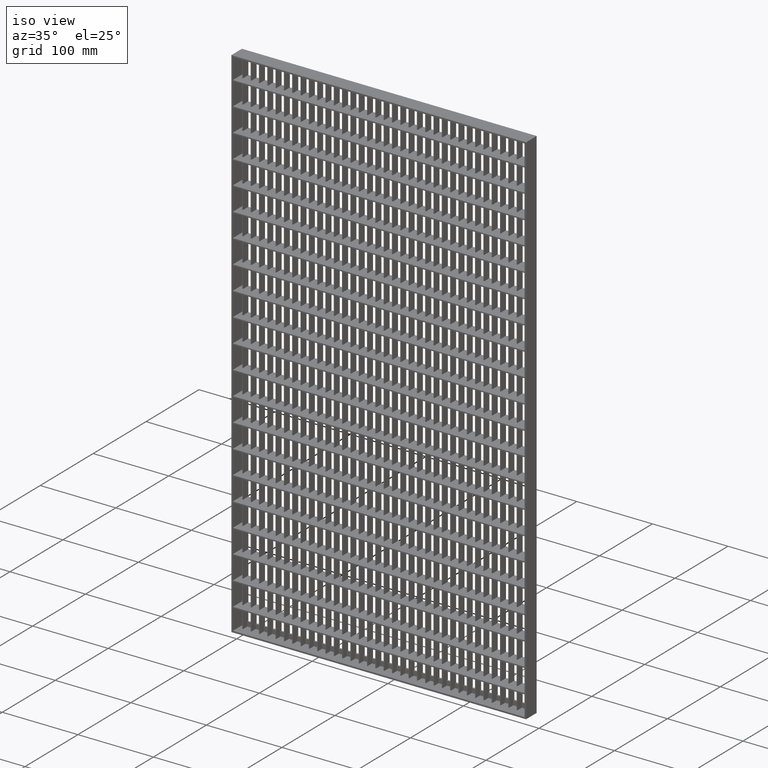
[diagram: clean part render]
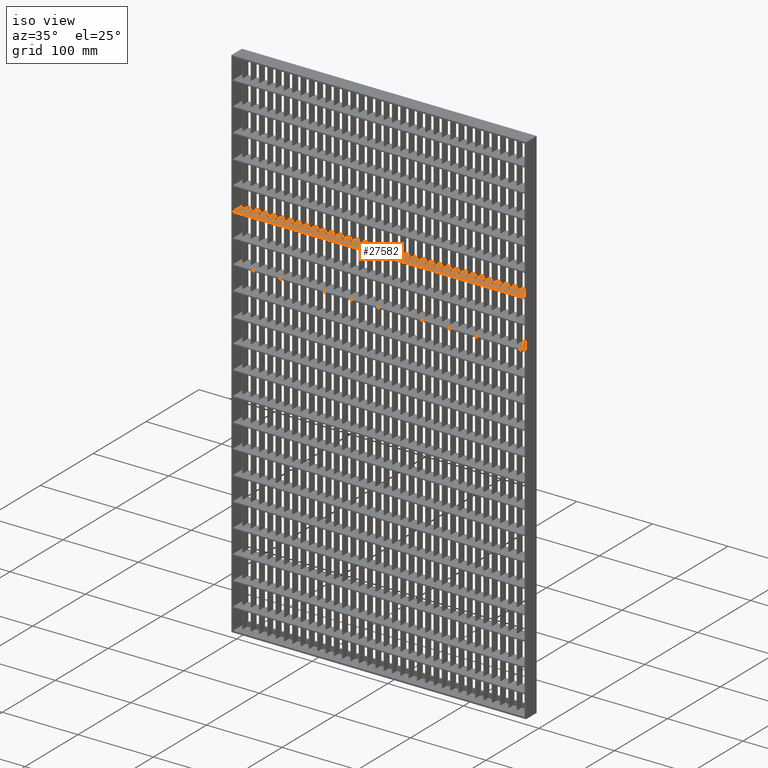
[diagram: same view with one face highlighted and labeled with its STEP entity id]
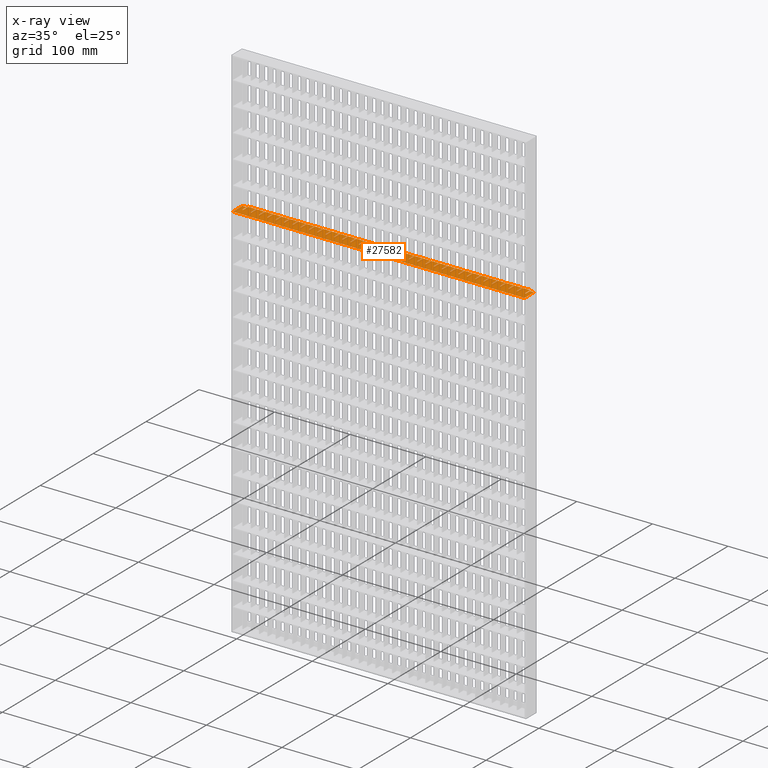
[diagram: x-ray of the same camera — body ghosted, the highlighted face saturated]
A machine part, iso view. The second image highlights one B-rep face of the part: STEP entity #27582.
The next image is the same camera in x-ray: the body ghosted, the highlighted face saturated — about 0% of this face is hidden behind the body in this view.
In plain terms, the highlighted planar face has unit normal (0, 0, 1).
Its self-contained STEP definition (entity closure, byte-faithful):
#100 = LINE ( 'NONE', #73341, #63340 ) ;
#113 = EDGE_CURVE ( 'NONE', #22289, #94714, #88163, .T. ) ;
#140 = DIRECTION ( 'NONE',  ( -1.000000000000000000, 3.061616997868381200E-016, 0.0000000000000000000 ) ) ;
#227 = CARTESIAN_POINT ( 'NONE',  ( 327.5000000000000000, 7.001226303889181300E-016, -186.7500000000002000 ) ) ;
#322 = DIRECTION ( 'NONE',  ( -1.000000000000000000, -3.061616997868383100E-016, 0.0000000000000000000 ) ) ;
#342 = CARTESIAN_POINT ( 'NONE',  ( 8.500000000000007100, 1.006284330175756500E-015, -186.7500000000002000 ) ) ;
#460 = ORIENTED_EDGE ( 'NONE', *, *, #85591, .T. ) ;
#513 = VECTOR ( 'NONE', #88251, 1000.000000000000000 ) ;
#531 = EDGE_CURVE ( 'NONE', #54925, #29659, #93186, .T. ) ;
#589 = VERTEX_POINT ( 'NONE', #2571 ) ;
#686 = DIRECTION ( 'NONE',  ( 0.0000000000000000000, -1.000000000000000000, 0.0000000000000000000 ) ) ;
#842 = VECTOR ( 'NONE', #14915, 1000.000000000000000 ) ;
#846 = DIRECTION ( 'NONE',  ( 0.0000000000000000000, -1.000000000000000000, 0.0000000000000000000 ) ) ;
#865 = CARTESIAN_POINT ( 'NONE',  ( 271.5000000000000600, 1.006284330175756500E-015, -186.7500000000002000 ) ) ;
#889 = VERTEX_POINT ( 'NONE', #63315 ) ;
#1152 = VERTEX_POINT ( 'NONE', #41731 ) ;
#1424 = VECTOR ( 'NONE', #68854, 1000.000000000000000 ) ;
#1500 = LINE ( 'NONE', #73575, #30685 ) ;
#1754 = EDGE_CURVE ( 'NONE', #13567, #45948, #41073, .T. ) ;
#1911 = EDGE_CURVE ( 'NONE', #38059, #41204, #82812, .T. ) ;
#1962 = VECTOR ( 'NONE', #22822, 1000.000000000000000 ) ;
#1973 = CARTESIAN_POINT ( 'NONE',  ( 408.0561711201316900, -5.724587470723463400E-014, -186.7500000000001700 ) ) ;
#2156 = LINE ( 'NONE', #17259, #80670 ) ;
#2161 = DIRECTION ( 'NONE',  ( -0.0000000000000000000, 1.000000000000000000, 0.0000000000000000000 ) ) ;
#2261 = EDGE_CURVE ( 'NONE', #79778, #97035, #56072, .T. ) ;
#2386 = ORIENTED_EDGE ( 'NONE', *, *, #50535, .T. ) ;
#2435 = DIRECTION ( 'NONE',  ( -1.000000000000000000, -3.061616997868383100E-016, 0.0000000000000000000 ) ) ;
#2571 = CARTESIAN_POINT ( 'NONE',  ( 250.5000000000000600, 7.001226303889181300E-016, -186.7500000000002000 ) ) ;
#2621 = VECTOR ( 'NONE', #63466, 1000.000000000000000 ) ;
#2631 = DIRECTION ( 'NONE',  ( -1.000000000000000000, 3.061616997868381200E-016, 0.0000000000000000000 ) ) ;
#2701 = EDGE_CURVE ( 'NONE', #85478, #94355, #104435, .T. ) ;
#2703 = CARTESIAN_POINT ( 'NONE',  ( 304.5000000000000000, 1.006284330175756500E-015, -186.7500000000002000 ) ) ;
#2726 = CARTESIAN_POINT ( 'NONE',  ( 73.50000000000001400, -9.999999999999877400, -186.7500000000001700 ) ) ;
#2749 = CARTESIAN_POINT ( 'NONE',  ( 408.0561711201316400, 10.00000000000012400, -186.7500000000001700 ) ) ;
#2754 = VECTOR ( 'NONE', #8461, 1000.000000000000000 ) ;
#2954 = LINE ( 'NONE', #46773, #89052 ) ;
#3100 = EDGE_CURVE ( 'NONE', #92649, #37688, #8029, .T. ) ;
#3127 = CARTESIAN_POINT ( 'NONE',  ( 294.5000000000000600, 10.00000000000000200, -186.7500000000002000 ) ) ;
#3273 = CARTESIAN_POINT ( 'NONE',  ( 408.0561711201316900, -2.255140518769849200E-014, -186.7500000000001700 ) ) ;
#3281 = LINE ( 'NONE', #32411, #65281 ) ;
#3371 = LINE ( 'NONE', #4149, #97126 ) ;
#3403 = CARTESIAN_POINT ( 'NONE',  ( 260.5000000000000600, 1.006284330175756500E-015, -186.7500000000002000 ) ) ;
#3414 = EDGE_CURVE ( 'NONE', #98384, #22240, #42183, .T. ) ;
#3577 = VECTOR ( 'NONE', #22873, 1000.000000000000000 ) ;
#3763 = CARTESIAN_POINT ( 'NONE',  ( 408.0561711201316900, 1.179611963664228800E-013, -186.7500000000001700 ) ) ;
#3916 = VERTEX_POINT ( 'NONE', #83686 ) ;
#3929 = DIRECTION ( 'NONE',  ( -1.000000000000000000, -3.061616997868383100E-016, 0.0000000000000000000 ) ) ;
#4034 = DIRECTION ( 'NONE',  ( -1.000000000000000000, -3.061616997868383100E-016, 0.0000000000000000000 ) ) ;
#4149 = CARTESIAN_POINT ( 'NONE',  ( 408.0561711201316400, 10.00000000000012400, -186.7500000000001700 ) ) ;
#4160 = VERTEX_POINT ( 'NONE', #53886 ) ;
#4187 = VECTOR ( 'NONE', #45540, 1000.000000000000000 ) ;
#4236 = CARTESIAN_POINT ( 'NONE',  ( 408.0561711201316400, 10.00000000000012400, -186.7500000000001700 ) ) ;
#4384 = CARTESIAN_POINT ( 'NONE',  ( 360.5000000000000600, 7.001226303889181300E-016, -186.7500000000002000 ) ) ;
#4487 = EDGE_CURVE ( 'NONE', #94714, #32356, #88748, .T. ) ;
#4626 = CARTESIAN_POINT ( 'NONE',  ( 238.5000000000001100, 10.00000000000007300, -186.7500000000001700 ) ) ;
#4640 = CARTESIAN_POINT ( 'NONE',  ( 161.5000000000000000, 10.00000000000000200, -186.7500000000002000 ) ) ;
#4843 = LINE ( 'NONE', #52163, #56706 ) ;
#5050 = CARTESIAN_POINT ( 'NONE',  ( 206.5000000000000900, -9.999999999999877400, -186.7500000000001700 ) ) ;
#5096 = LINE ( 'NONE', #100761, #102600 ) ;
#5097 = DIRECTION ( 'NONE',  ( 0.0000000000000000000, -1.000000000000000000, 0.0000000000000000000 ) ) ;
#5264 = CARTESIAN_POINT ( 'NONE',  ( 408.0561711201316900, -1.734723475976807100E-014, -186.7500000000001700 ) ) ;
#5597 = CARTESIAN_POINT ( 'NONE',  ( 408.0561711201316900, -4.336808689942017700E-014, -186.7500000000001700 ) ) ;
#5774 = CARTESIAN_POINT ( 'NONE',  ( 96.50000000000002800, -9.999999999999877400, -186.7500000000001700 ) ) ;
#5881 = CARTESIAN_POINT ( 'NONE',  ( 408.0561711201316900, -2.602085213965210600E-014, -186.7500000000001700 ) ) ;
#5946 = DIRECTION ( 'NONE',  ( 0.0000000000000000000, -1.000000000000000000, 0.0000000000000000000 ) ) ;
#5981 = VERTEX_POINT ( 'NONE', #52826 ) ;
#6267 = VECTOR ( 'NONE', #35063, 1000.000000000000000 ) ;
#6271 = LINE ( 'NONE', #25131, #43063 ) ;
#6340 = LINE ( 'NONE', #8272, #46893 ) ;
#6387 = ORIENTED_EDGE ( 'NONE', *, *, #66122, .F. ) ;
#6494 = DIRECTION ( 'NONE',  ( -1.000000000000000000, -3.061616997868383100E-016, 0.0000000000000000000 ) ) ;
#6625 = ORIENTED_EDGE ( 'NONE', *, *, #8331, .T. ) ;
#6747 = DIRECTION ( 'NONE',  ( -0.0000000000000000000, 1.000000000000000000, 0.0000000000000000000 ) ) ;
#6752 = DIRECTION ( 'NONE',  ( -1.000000000000000000, 3.061616997868381200E-016, 0.0000000000000000000 ) ) ;
#6896 = EDGE_CURVE ( 'NONE', #88294, #90629, #40179, .T. ) ;
#6897 = VERTEX_POINT ( 'NONE', #32115 ) ;
#6921 = VERTEX_POINT ( 'NONE', #88054 ) ;
#7006 = CARTESIAN_POINT ( 'NONE',  ( 316.5000000000001100, 7.001226303889181300E-016, -186.7500000000002000 ) ) ;
#7019 = CARTESIAN_POINT ( 'NONE',  ( 250.5000000000000600, 10.00000000000000200, -186.7500000000002000 ) ) ;
#7043 = VERTEX_POINT ( 'NONE', #89782 ) ;
#7177 = VERTEX_POINT ( 'NONE', #2703 ) ;
#7300 = VERTEX_POINT ( 'NONE', #12904 ) ;
#7372 = VECTOR ( 'NONE', #98075, 1000.000000000000000 ) ;
#7559 = EDGE_CURVE ( 'NONE', #66760, #589, #95743, .T. ) ;
#7587 = ORIENTED_EDGE ( 'NONE', *, *, #87898, .T. ) ;
#7615 = VECTOR ( 'NONE', #98198, 1000.000000000000000 ) ;
#7629 = CARTESIAN_POINT ( 'NONE',  ( 217.5000000000000900, 7.001226303889181300E-016, -186.7500000000002000 ) ) ;
#7680 = EDGE_CURVE ( 'NONE', #22321, #6897, #41270, .T. ) ;
#7748 = VECTOR ( 'NONE', #44287, 1000.000000000000000 ) ;
#7790 = DIRECTION ( 'NONE',  ( 0.0000000000000000000, -1.000000000000000000, 0.0000000000000000000 ) ) ;
#8029 = LINE ( 'NONE', #63256, #11917 ) ;
#8033 = EDGE_CURVE ( 'NONE', #101379, #60479, #69973, .T. ) ;
#8190 = CARTESIAN_POINT ( 'NONE',  ( 408.0561711201316400, 10.00000000000012400, -186.7500000000001700 ) ) ;
#8272 = CARTESIAN_POINT ( 'NONE',  ( 408.0561711201316900, -2.949029909160572100E-014, -186.7500000000001700 ) ) ;
#8331 = EDGE_CURVE ( 'NONE', #55089, #7300, #27307, .T. ) ;
#8415 = EDGE_CURVE ( 'NONE', #18652, #59808, #9611, .T. ) ;
#8461 = DIRECTION ( 'NONE',  ( -0.0000000000000000000, 1.000000000000000000, 0.0000000000000000000 ) ) ;
#8823 = CARTESIAN_POINT ( 'NONE',  ( 408.0561711201316400, 10.00000000000012400, -186.7500000000001700 ) ) ;
#9192 = CARTESIAN_POINT ( 'NONE',  ( 408.0561711201316900, 7.632783294297951200E-014, -186.7500000000001700 ) ) ;
#9325 = CARTESIAN_POINT ( 'NONE',  ( 19.50000000000001800, -9.999999999999877400, -186.7500000000001700 ) ) ;
#9427 = VECTOR ( 'NONE', #39374, 1000.000000000000000 ) ;
#9549 = CARTESIAN_POINT ( 'NONE',  ( 388.0000000000000600, -9.999999999999877400, -186.7500000000001700 ) ) ;
#9587 = ORIENTED_EDGE ( 'NONE', *, *, #7559, .T. ) ;
#9611 = LINE ( 'NONE', #35422, #32383 ) ;
#9708 = VECTOR ( 'NONE', #81160, 1000.000000000000000 ) ;
#9735 = VERTEX_POINT ( 'NONE', #49209 ) ;
#9839 = EDGE_CURVE ( 'NONE', #54669, #20265, #37172, .T. ) ;
#9923 = CARTESIAN_POINT ( 'NONE',  ( 408.0561711201316900, 8.673617379884035500E-014, -186.7500000000001700 ) ) ;
#10123 = ORIENTED_EDGE ( 'NONE', *, *, #54932, .T. ) ;
#10251 = VECTOR ( 'NONE', #17658, 1000.000000000000000 ) ;
#10332 = CARTESIAN_POINT ( 'NONE',  ( 408.0561711201316400, 10.00000000000012400, -186.7500000000001700 ) ) ;
#10368 = EDGE_CURVE ( 'NONE', #86815, #23116, #14279, .T. ) ;
#10547 = VECTOR ( 'NONE', #6747, 1000.000000000000000 ) ;
#10631 = VERTEX_POINT ( 'NONE', #88524 ) ;
#10800 = ORIENTED_EDGE ( 'NONE', *, *, #63842, .T. ) ;
#10819 = EDGE_CURVE ( 'NONE', #40888, #18809, #78790, .T. ) ;
#10846 = DIRECTION ( 'NONE',  ( 0.0000000000000000000, -1.000000000000000000, 0.0000000000000000000 ) ) ;
#10876 = ORIENTED_EDGE ( 'NONE', *, *, #12686, .F. ) ;
#10913 = EDGE_CURVE ( 'NONE', #10631, #40888, #19261, .T. ) ;
#10931 = DIRECTION ( 'NONE',  ( 1.000000000000000000, 3.061616997868381200E-016, -0.0000000000000000000 ) ) ;
#11093 = VERTEX_POINT ( 'NONE', #77835 ) ;
#11177 = ORIENTED_EDGE ( 'NONE', *, *, #102661, .T. ) ;
#11187 = VECTOR ( 'NONE', #98134, 1000.000000000000000 ) ;
#11219 = LINE ( 'NONE', #41588, #73246 ) ;
#11553 = DIRECTION ( 'NONE',  ( 0.0000000000000000000, -1.000000000000000000, 0.0000000000000000000 ) ) ;
#11581 = LINE ( 'NONE', #35588, #82470 ) ;
#11659 = CARTESIAN_POINT ( 'NONE',  ( 282.5000000000001100, 10.00000000000008700, -186.7500000000001700 ) ) ;
#11809 = CARTESIAN_POINT ( 'NONE',  ( 408.0561711201316900, -1.387778780781445700E-014, -186.7500000000001700 ) ) ;
#11917 = VECTOR ( 'NONE', #72803, 1000.000000000000000 ) ;
#11951 = LINE ( 'NONE', #55007, #99327 ) ;
#12064 = CARTESIAN_POINT ( 'NONE',  ( 150.5000000000000300, 9.434447542038643500E-016, -186.7500000000001700 ) ) ;
#12096 = CARTESIAN_POINT ( 'NONE',  ( 261.5000000000000600, 7.001226303889181300E-016, -186.7500000000002000 ) ) ;
#12500 = CARTESIAN_POINT ( 'NONE',  ( 84.49999999999995700, 1.553454279994217100E-015, -186.7500000000001700 ) ) ;
#12686 = EDGE_CURVE ( 'NONE', #63571, #44397, #35248, .T. ) ;
#12783 = ORIENTED_EDGE ( 'NONE', *, *, #89141, .T. ) ;
#12904 = CARTESIAN_POINT ( 'NONE',  ( 2.000000000000112800, -10.00000000000000200, -186.7500000000001700 ) ) ;
#12976 = VECTOR ( 'NONE', #17443, 1000.000000000000000 ) ;
#13084 = CARTESIAN_POINT ( 'NONE',  ( 327.5000000000000000, 10.00000000000000200, -186.7500000000002000 ) ) ;
#13090 = PLANE ( 'NONE',  #16651 ) ;
#13244 = EDGE_CURVE ( 'NONE', #19888, #24687, #94703, .T. ) ;
#13357 = DIRECTION ( 'NONE',  ( -1.000000000000000000, -3.061616997868383100E-016, 0.0000000000000000000 ) ) ;
#13567 = VERTEX_POINT ( 'NONE', #61067 ) ;
#13721 = CARTESIAN_POINT ( 'NONE',  ( 272.5000000000000600, 10.00000000000000200, -186.7500000000002000 ) ) ;
#13772 = EDGE_CURVE ( 'NONE', #23116, #87654, #34609, .T. ) ;
#13781 = DIRECTION ( 'NONE',  ( 1.000000000000000000, 0.0000000000000000000, -0.0000000000000000000 ) ) ;
#13822 = ORIENTED_EDGE ( 'NONE', *, *, #80424, .T. ) ;
#13900 = DIRECTION ( 'NONE',  ( -0.0000000000000000000, 1.000000000000000000, 0.0000000000000000000 ) ) ;
#13915 = ORIENTED_EDGE ( 'NONE', *, *, #84730, .T. ) ;
#14056 = DIRECTION ( 'NONE',  ( 0.0000000000000000000, -1.000000000000000000, 0.0000000000000000000 ) ) ;
#14279 = LINE ( 'NONE', #68738, #87612 ) ;
#14310 = LINE ( 'NONE', #92706, #97911 ) ;
#14440 = VECTOR ( 'NONE', #99029, 1000.000000000000000 ) ;
#14454 = ORIENTED_EDGE ( 'NONE', *, *, #40786, .T. ) ;
#14675 = CARTESIAN_POINT ( 'NONE',  ( 408.0561711201316900, 1.110223024625156500E-013, -186.7500000000001700 ) ) ;
#14759 = LINE ( 'NONE', #95667, #842 ) ;
#14808 = EDGE_CURVE ( 'NONE', #36450, #84509, #20984, .T. ) ;
#14915 = DIRECTION ( 'NONE',  ( 0.0000000000000000000, -1.000000000000000000, 0.0000000000000000000 ) ) ;
#15008 = ORIENTED_EDGE ( 'NONE', *, *, #102240, .T. ) ;
#15020 = ORIENTED_EDGE ( 'NONE', *, *, #23233, .T. ) ;
#15086 = VECTOR ( 'NONE', #25509, 1000.000000000000000 ) ;
#15120 = CARTESIAN_POINT ( 'NONE',  ( 408.0561711201316900, 9.714451465470119700E-014, -186.7500000000001700 ) ) ;
#15130 = VERTEX_POINT ( 'NONE', #98529 ) ;
#15242 = VECTOR ( 'NONE', #60386, 1000.000000000000000 ) ;
#15273 = LINE ( 'NONE', #87899, #75991 ) ;
#15418 = VECTOR ( 'NONE', #91249, 1000.000000000000000 ) ;
#15435 = DIRECTION ( 'NONE',  ( 1.000000000000000000, 3.061616997868381200E-016, -0.0000000000000000000 ) ) ;
#15486 = EDGE_CURVE ( 'NONE', #9735, #88022, #79132, .T. ) ;
#15583 = VECTOR ( 'NONE', #27922, 1000.000000000000000 ) ;
#15761 = ORIENTED_EDGE ( 'NONE', *, *, #82190, .F. ) ;
#15932 = VERTEX_POINT ( 'NONE', #60869 ) ;
#16142 = DIRECTION ( 'NONE',  ( -1.000000000000000000, -3.061616997868383100E-016, 0.0000000000000000000 ) ) ;
#16168 = DIRECTION ( 'NONE',  ( -1.000000000000000000, -3.061616997868383100E-016, 0.0000000000000000000 ) ) ;
#16181 = VECTOR ( 'NONE', #69631, 1000.000000000000000 ) ;
#16263 = ORIENTED_EDGE ( 'NONE', *, *, #10368, .F. ) ;
#16307 = EDGE_CURVE ( 'NONE', #102432, #67337, #47378, .T. ) ;
#16324 = EDGE_CURVE ( 'NONE', #53471, #66760, #82810, .T. ) ;
#16383 = DIRECTION ( 'NONE',  ( 0.0000000000000000000, -1.000000000000000000, 0.0000000000000000000 ) ) ;
#16448 = VERTEX_POINT ( 'NONE', #100774 ) ;
#16488 = DIRECTION ( 'NONE',  ( -0.0000000000000000000, 1.000000000000000000, 0.0000000000000000000 ) ) ;
#16490 = EDGE_CURVE ( 'NONE', #60479, #18652, #33343, .T. ) ;
#16544 = VECTOR ( 'NONE', #14056, 1000.000000000000000 ) ;
#16603 = LINE ( 'NONE', #92800, #7748 ) ;
#16651 = AXIS2_PLACEMENT_3D ( 'NONE', #37588, #45318, #13781 ) ;
#16657 = EDGE_CURVE ( 'NONE', #22240, #84049, #46061, .T. ) ;
#16682 = CARTESIAN_POINT ( 'NONE',  ( 305.5000000000000000, -9.999999999999877400, -186.7500000000001700 ) ) ;
#16688 = ORIENTED_EDGE ( 'NONE', *, *, #94722, .F. ) ;
#16803 = ORIENTED_EDGE ( 'NONE', *, *, #55233, .T. ) ;
#16828 = DIRECTION ( 'NONE',  ( -0.0000000000000000000, 1.000000000000000000, 0.0000000000000000000 ) ) ;
#16860 = EDGE_CURVE ( 'NONE', #86271, #87161, #18070, .T. ) ;
#17003 = EDGE_CURVE ( 'NONE', #78111, #26303, #53460, .T. ) ;
#17021 = CARTESIAN_POINT ( 'NONE',  ( 40.49999999999997900, -9.999999999999877400, -186.7500000000001700 ) ) ;
#17191 = CARTESIAN_POINT ( 'NONE',  ( 194.5000000000000000, -9.999999999999877400, -186.7500000000001700 ) ) ;
#17212 = ORIENTED_EDGE ( 'NONE', *, *, #23824, .F. ) ;
#17259 = CARTESIAN_POINT ( 'NONE',  ( 18.50000000000001800, -9.999999999999877400, -186.7500000000001700 ) ) ;
#17332 = DIRECTION ( 'NONE',  ( -1.000000000000000000, -3.061616997868383100E-016, 0.0000000000000000000 ) ) ;
#17365 = ORIENTED_EDGE ( 'NONE', *, *, #51471, .F. ) ;
#17443 = DIRECTION ( 'NONE',  ( -0.0000000000000000000, 1.000000000000000000, 0.0000000000000000000 ) ) ;
#17518 = DIRECTION ( 'NONE',  ( -1.000000000000000000, -3.061616997868383100E-016, 0.0000000000000000000 ) ) ;
#17644 = DIRECTION ( 'NONE',  ( -1.000000000000000000, -3.061616997868383100E-016, 0.0000000000000000000 ) ) ;
#17658 = DIRECTION ( 'NONE',  ( 0.0000000000000000000, -1.000000000000000000, 0.0000000000000000000 ) ) ;
#17767 = CARTESIAN_POINT ( 'NONE',  ( 408.0561711201316900, 1.144917494144692700E-013, -186.7500000000001700 ) ) ;
#18064 = CARTESIAN_POINT ( 'NONE',  ( 96.50000000000014200, 10.00000000000003000, -186.7500000000001700 ) ) ;
#18070 = LINE ( 'NONE', #73388, #48486 ) ;
#18136 = LINE ( 'NONE', #30130, #10547 ) ;
#18196 = DIRECTION ( 'NONE',  ( -1.000000000000000000, 0.0000000000000000000, 0.0000000000000000000 ) ) ;
#18269 = CARTESIAN_POINT ( 'NONE',  ( 62.49999999999994300, 1.756790788591005400E-015, -186.7500000000001700 ) ) ;
#18276 = CARTESIAN_POINT ( 'NONE',  ( 128.5000000000000000, 10.00000000000000200, -186.7500000000002000 ) ) ;
#18423 = CARTESIAN_POINT ( 'NONE',  ( 19.50000000000012800, 10.00000000000000500, -186.7500000000001700 ) ) ;
#18505 = CARTESIAN_POINT ( 'NONE',  ( 52.49999999999999300, 0.0000000000000000000, -186.7500000000001700 ) ) ;
#18652 = VERTEX_POINT ( 'NONE', #22986 ) ;
#18739 = DIRECTION ( 'NONE',  ( 0.0000000000000000000, -1.000000000000000000, 0.0000000000000000000 ) ) ;
#18791 = CARTESIAN_POINT ( 'NONE',  ( 239.5000000000000600, 7.001226303889181300E-016, -186.7500000000002000 ) ) ;
#18809 = VERTEX_POINT ( 'NONE', #66318 ) ;
#18921 = ORIENTED_EDGE ( 'NONE', *, *, #15486, .F. ) ;
#19112 = DIRECTION ( 'NONE',  ( 0.0000000000000000000, -1.000000000000000000, 0.0000000000000000000 ) ) ;
#19133 = ORIENTED_EDGE ( 'NONE', *, *, #21177, .T. ) ;
#19135 = EDGE_CURVE ( 'NONE', #20265, #85176, #54178, .T. ) ;
#19149 = ORIENTED_EDGE ( 'NONE', *, *, #7680, .T. ) ;
#19211 = DIRECTION ( 'NONE',  ( 0.0000000000000000000, -1.000000000000000000, 0.0000000000000000000 ) ) ;
#19261 = LINE ( 'NONE', #26543, #57215 ) ;
#19445 = CARTESIAN_POINT ( 'NONE',  ( 260.5000000000001100, 10.00000000000008000, -186.7500000000001700 ) ) ;
#19512 = VERTEX_POINT ( 'NONE', #52047 ) ;
#19766 = ORIENTED_EDGE ( 'NONE', *, *, #39258, .T. ) ;
#19886 = EDGE_CURVE ( 'NONE', #29659, #22289, #60809, .T. ) ;
#19888 = VERTEX_POINT ( 'NONE', #23329 ) ;
#19953 = DIRECTION ( 'NONE',  ( 0.0000000000000000000, -1.000000000000000000, 0.0000000000000000000 ) ) ;
#19980 = CARTESIAN_POINT ( 'NONE',  ( 408.0561711201316900, -3.295974604355933500E-014, -186.7500000000001700 ) ) ;
#20177 = DIRECTION ( 'NONE',  ( -0.0000000000000000000, 1.000000000000000000, 0.0000000000000000000 ) ) ;
#20247 = LINE ( 'NONE', #88992, #103877 ) ;
#20265 = VERTEX_POINT ( 'NONE', #62123 ) ;
#20313 = LINE ( 'NONE', #8190, #82370 ) ;
#20377 = EDGE_CURVE ( 'NONE', #7043, #95729, #35357, .T. ) ;
#20393 = CARTESIAN_POINT ( 'NONE',  ( 408.0561711201316900, 6.938893903907228400E-014, -186.7500000000001700 ) ) ;
#20416 = ORIENTED_EDGE ( 'NONE', *, *, #34191, .F. ) ;
#20591 = VECTOR ( 'NONE', #30077, 1000.000000000000000 ) ;
#20641 = ORIENTED_EDGE ( 'NONE', *, *, #34848, .F. ) ;
#20814 = LINE ( 'NONE', #70803, #80329 ) ;
#20905 = EDGE_CURVE ( 'NONE', #95729, #92649, #66874, .T. ) ;
#20984 = LINE ( 'NONE', #78420, #1962 ) ;
#21177 = EDGE_CURVE ( 'NONE', #33708, #78111, #61942, .T. ) ;
#21231 = ORIENTED_EDGE ( 'NONE', *, *, #8415, .F. ) ;
#21594 = CARTESIAN_POINT ( 'NONE',  ( 349.5000000000000600, -9.999999999999877400, -186.7500000000001700 ) ) ;
#21615 = EDGE_CURVE ( 'NONE', #33615, #41224, #25066, .T. ) ;
#22078 = EDGE_CURVE ( 'NONE', #86815, #88022, #102318, .T. ) ;
#22161 = LINE ( 'NONE', #19980, #31004 ) ;
#22240 = VERTEX_POINT ( 'NONE', #31596 ) ;
#22289 = VERTEX_POINT ( 'NONE', #96050 ) ;
#22321 = VERTEX_POINT ( 'NONE', #56338 ) ;
#22359 = CARTESIAN_POINT ( 'NONE',  ( 140.5000000000001100, 10.00000000000004400, -186.7500000000001700 ) ) ;
#22502 = CARTESIAN_POINT ( 'NONE',  ( 140.5000000000000000, -9.999999999999877400, -186.7500000000001700 ) ) ;
#22639 = VERTEX_POINT ( 'NONE', #13084 ) ;
#22822 = DIRECTION ( 'NONE',  ( -0.0000000000000000000, 1.000000000000000000, 0.0000000000000000000 ) ) ;
#22873 = DIRECTION ( 'NONE',  ( -1.000000000000000000, -3.061616997868383100E-016, 0.0000000000000000000 ) ) ;
#22885 = LINE ( 'NONE', #94764, #88703 ) ;
#22926 = CARTESIAN_POINT ( 'NONE',  ( 74.50000000000001400, 0.0000000000000000000, -186.7500000000001700 ) ) ;
#22986 = CARTESIAN_POINT ( 'NONE',  ( 184.5000000000000000, 0.0000000000000000000, -186.7500000000001700 ) ) ;
#23041 = ORIENTED_EDGE ( 'NONE', *, *, #10819, .F. ) ;
#23079 = CARTESIAN_POINT ( 'NONE',  ( 272.5000000000000600, 7.001226303889181300E-016, -186.7500000000002000 ) ) ;
#23116 = VERTEX_POINT ( 'NONE', #65713 ) ;
#23233 = EDGE_CURVE ( 'NONE', #38429, #38059, #70277, .T. ) ;
#23245 = CARTESIAN_POINT ( 'NONE',  ( 95.50000000000001400, 10.00000000000000200, -186.7500000000002000 ) ) ;
#23320 = EDGE_CURVE ( 'NONE', #91444, #79778, #67626, .T. ) ;
#23329 = CARTESIAN_POINT ( 'NONE',  ( 194.5000000000000000, 10.00000000000000200, -186.7500000000002000 ) ) ;
#23667 = VERTEX_POINT ( 'NONE', #45719 ) ;
#23681 = ORIENTED_EDGE ( 'NONE', *, *, #74963, .T. ) ;
#23682 = VERTEX_POINT ( 'NONE', #12096 ) ;
#23794 = VECTOR ( 'NONE', #5097, 1000.000000000000000 ) ;
#23824 = EDGE_CURVE ( 'NONE', #88964, #53398, #18136, .T. ) ;
#23856 = EDGE_CURVE ( 'NONE', #55997, #16448, #2954, .T. ) ;
#23949 = VECTOR ( 'NONE', #88990, 1000.000000000000000 ) ;
#24129 = EDGE_CURVE ( 'NONE', #102604, #22639, #28227, .T. ) ;
#24165 = CARTESIAN_POINT ( 'NONE',  ( 7.500000000000007100, 7.001226303889181300E-016, -186.7500000000002000 ) ) ;
#24290 = ORIENTED_EDGE ( 'NONE', *, *, #82535, .F. ) ;
#24393 = VERTEX_POINT ( 'NONE', #37498 ) ;
#24651 = DIRECTION ( 'NONE',  ( 0.0000000000000000000, -1.000000000000000000, 0.0000000000000000000 ) ) ;
#24687 = VERTEX_POINT ( 'NONE', #43770 ) ;
#24899 = DIRECTION ( 'NONE',  ( -0.0000000000000000000, 1.000000000000000000, 0.0000000000000000000 ) ) ;
#25066 = LINE ( 'NONE', #96859, #3577 ) ;
#25131 = CARTESIAN_POINT ( 'NONE',  ( 217.5000000000000900, -9.999999999999877400, -186.7500000000001700 ) ) ;
#25133 = CARTESIAN_POINT ( 'NONE',  ( 261.5000000000000600, 10.00000000000000200, -186.7500000000002000 ) ) ;
#25379 = LINE ( 'NONE', #91957, #15242 ) ;
#25451 = LINE ( 'NONE', #17021, #65946 ) ;
#25509 = DIRECTION ( 'NONE',  ( 0.0000000000000000000, -1.000000000000000000, 0.0000000000000000000 ) ) ;
#25552 = CARTESIAN_POINT ( 'NONE',  ( 382.5000000000000600, 7.001226303889181300E-016, -186.7500000000002000 ) ) ;
#25839 = EDGE_CURVE ( 'NONE', #78733, #48591, #77148, .T. ) ;
#26123 = VERTEX_POINT ( 'NONE', #53389 ) ;
#26303 = VERTEX_POINT ( 'NONE', #13721 ) ;
#26418 = ORIENTED_EDGE ( 'NONE', *, *, #19135, .T. ) ;
#26505 = CARTESIAN_POINT ( 'NONE',  ( 408.0561711201316400, 10.00000000000012400, -186.7500000000001700 ) ) ;
#26543 = CARTESIAN_POINT ( 'NONE',  ( 84.50000000000001400, -9.999999999999877400, -186.7500000000001700 ) ) ;
#26906 = LINE ( 'NONE', #22502, #38344 ) ;
#27025 = VERTEX_POINT ( 'NONE', #35700 ) ;
#27148 = ORIENTED_EDGE ( 'NONE', *, *, #4487, .T. ) ;
#27161 = CARTESIAN_POINT ( 'NONE',  ( 408.0561711201316400, 10.00000000000012400, -186.7500000000001700 ) ) ;
#27307 = LINE ( 'NONE', #82131, #37517 ) ;
#27338 = DIRECTION ( 'NONE',  ( -1.000000000000000000, 3.061616997868381200E-016, 0.0000000000000000000 ) ) ;
#27522 = DIRECTION ( 'NONE',  ( -1.000000000000000000, -3.061616997868383100E-016, 0.0000000000000000000 ) ) ;
#27582 = ADVANCED_FACE ( 'NONE', ( #81712 ), #13090, .T. ) ;
#27597 = CARTESIAN_POINT ( 'NONE',  ( 150.5000000000000300, -9.999999999999877400, -186.7500000000001700 ) ) ;
#27681 = VERTEX_POINT ( 'NONE', #101973 ) ;
#27766 = VECTOR ( 'NONE', #65788, 1000.000000000000000 ) ;
#27853 = EDGE_CURVE ( 'NONE', #85176, #11093, #36047, .T. ) ;
#27922 = DIRECTION ( 'NONE',  ( -1.000000000000000000, -3.061616997868383100E-016, 0.0000000000000000000 ) ) ;
#28192 = ORIENTED_EDGE ( 'NONE', *, *, #91783, .T. ) ;
#28227 = LINE ( 'NONE', #42089, #69928 ) ;
#28338 = EDGE_CURVE ( 'NONE', #11093, #102604, #34636, .T. ) ;
#28606 = DIRECTION ( 'NONE',  ( -1.000000000000000000, 0.0000000000000000000, 0.0000000000000000000 ) ) ;
#28685 = LINE ( 'NONE', #4236, #30005 ) ;
#29066 = LINE ( 'NONE', #15120, #83521 ) ;
#29293 = DIRECTION ( 'NONE',  ( 1.000000000000000000, 3.061616997868381200E-016, -0.0000000000000000000 ) ) ;
#29460 = DIRECTION ( 'NONE',  ( -1.000000000000000000, -3.061616997868383100E-016, 0.0000000000000000000 ) ) ;
#29537 = ORIENTED_EDGE ( 'NONE', *, *, #50674, .F. ) ;
#29659 = VERTEX_POINT ( 'NONE', #34614 ) ;
#29678 = CARTESIAN_POINT ( 'NONE',  ( 338.5000000000000000, 7.001226303889181300E-016, -186.7500000000002000 ) ) ;
#29873 = EDGE_CURVE ( 'NONE', #102933, #15932, #22885, .T. ) ;
#30005 = VECTOR ( 'NONE', #68616, 1000.000000000000000 ) ;
#30017 = CARTESIAN_POINT ( 'NONE',  ( 408.0561711201316400, 10.00000000000012400, -186.7500000000001700 ) ) ;
#30077 = DIRECTION ( 'NONE',  ( 0.0000000000000000000, -1.000000000000000000, 0.0000000000000000000 ) ) ;
#30130 = CARTESIAN_POINT ( 'NONE',  ( 195.5000000000000000, -9.999999999999877400, -186.7500000000001700 ) ) ;
#30160 = CARTESIAN_POINT ( 'NONE',  ( 41.50000000000014900, 10.00000000000001200, -186.7500000000001700 ) ) ;
#30163 = EDGE_CURVE ( 'NONE', #24393, #50615, #20247, .T. ) ;
#30180 = EDGE_CURVE ( 'NONE', #23667, #7177, #6340, .T. ) ;
#30574 = LINE ( 'NONE', #43940, #35671 ) ;
#30685 = VECTOR ( 'NONE', #686, 1000.000000000000000 ) ;
#30824 = VECTOR ( 'NONE', #104921, 1000.000000000000000 ) ;
#30866 = EDGE_CURVE ( 'NONE', #37983, #49826, #87279, .T. ) ;
#30881 = CARTESIAN_POINT ( 'NONE',  ( 107.5000000000001600, 10.00000000000003400, -186.7500000000001700 ) ) ;
#31004 = VECTOR ( 'NONE', #33453, 1000.000000000000000 ) ;
#31061 = CARTESIAN_POINT ( 'NONE',  ( 408.0561711201316400, 10.00000000000012400, -186.7500000000001700 ) ) ;
#31104 = ORIENTED_EDGE ( 'NONE', *, *, #30866, .T. ) ;
#31183 = ORIENTED_EDGE ( 'NONE', *, *, #75774, .T. ) ;
#31247 = VERTEX_POINT ( 'NONE', #91841 ) ;
#31359 = ORIENTED_EDGE ( 'NONE', *, *, #70291, .T. ) ;
#31416 = ORIENTED_EDGE ( 'NONE', *, *, #55569, .T. ) ;
#31431 = VERTEX_POINT ( 'NONE', #76924 ) ;
#31446 = VECTOR ( 'NONE', #16142, 1000.000000000000000 ) ;
#31596 = CARTESIAN_POINT ( 'NONE',  ( 30.50000000000002800, 0.0000000000000000000, -186.7500000000001700 ) ) ;
#31744 = VERTEX_POINT ( 'NONE', #23079 ) ;
#31857 = EDGE_CURVE ( 'NONE', #50615, #102095, #84541, .T. ) ;
#31896 = CARTESIAN_POINT ( 'NONE',  ( 381.5000000000000600, 1.006284330175756500E-015, -186.7500000000002000 ) ) ;
#31907 = LINE ( 'NONE', #67165, #35689 ) ;
#32037 = LINE ( 'NONE', #53316, #82714 ) ;
#32075 = VECTOR ( 'NONE', #16488, 1000.000000000000000 ) ;
#32086 = EDGE_CURVE ( 'NONE', #41204, #89637, #28685, .T. ) ;
#32115 = CARTESIAN_POINT ( 'NONE',  ( 283.5000000000001100, 7.001226303889181300E-016, -186.7500000000002000 ) ) ;
#32356 = VERTEX_POINT ( 'NONE', #7006 ) ;
#32383 = VECTOR ( 'NONE', #61183, 1000.000000000000000 ) ;
#32411 = CARTESIAN_POINT ( 'NONE',  ( 408.0561711201316900, 6.765421556309547700E-014, -186.7500000000001700 ) ) ;
#32448 = CARTESIAN_POINT ( 'NONE',  ( 19.50000000000001800, 0.0000000000000000000, -186.7500000000001700 ) ) ;
#32561 = CARTESIAN_POINT ( 'NONE',  ( 228.5000000000000300, 7.001226303889181300E-016, -186.7500000000002000 ) ) ;
#32563 = CARTESIAN_POINT ( 'NONE',  ( 129.5000000000000000, -9.999999999999877400, -186.7500000000001700 ) ) ;
#32578 = CARTESIAN_POINT ( 'NONE',  ( 349.5000000000000600, 7.001226303889181300E-016, -186.7500000000002000 ) ) ;
#32636 = EDGE_CURVE ( 'NONE', #48591, #95638, #52761, .T. ) ;
#32639 = VECTOR ( 'NONE', #70144, 1000.000000000000000 ) ;
#32754 = EDGE_CURVE ( 'NONE', #26303, #31744, #14759, .T. ) ;
#32847 = EDGE_CURVE ( 'NONE', #16448, #91785, #60305, .T. ) ;
#33224 = VECTOR ( 'NONE', #59076, 1000.000000000000000 ) ;
#33285 = LINE ( 'NONE', #75045, #58539 ) ;
#33343 = LINE ( 'NONE', #20393, #72620 ) ;
#33453 = DIRECTION ( 'NONE',  ( -1.000000000000000000, 3.061616997868381200E-016, 0.0000000000000000000 ) ) ;
#33615 = VERTEX_POINT ( 'NONE', #44849 ) ;
#33643 = DIRECTION ( 'NONE',  ( 1.000000000000000000, 3.061616997868381200E-016, -0.0000000000000000000 ) ) ;
#33708 = VERTEX_POINT ( 'NONE', #85203 ) ;
#33923 = VERTEX_POINT ( 'NONE', #39875 ) ;
#33992 = ORIENTED_EDGE ( 'NONE', *, *, #21615, .T. ) ;
#34092 = LINE ( 'NONE', #39205, #72044 ) ;
#34191 = EDGE_CURVE ( 'NONE', #26123, #45602, #85346, .T. ) ;
#34259 = VECTOR ( 'NONE', #65200, 1000.000000000000000 ) ;
#34584 = CARTESIAN_POINT ( 'NONE',  ( 139.5000000000000000, -9.999999999999877400, -186.7500000000001700 ) ) ;
#34589 = VECTOR ( 'NONE', #3929, 1000.000000000000000 ) ;
#34609 = LINE ( 'NONE', #14675, #2621 ) ;
#34614 = CARTESIAN_POINT ( 'NONE',  ( 326.5000000000000000, 1.006284330175756500E-015, -186.7500000000002000 ) ) ;
#34636 = LINE ( 'NONE', #63541, #32075 ) ;
#34659 = ORIENTED_EDGE ( 'NONE', *, *, #13772, .F. ) ;
#34777 = CARTESIAN_POINT ( 'NONE',  ( 408.0561711201316900, 8.326672684688674100E-014, -186.7500000000001700 ) ) ;
#34848 = EDGE_CURVE ( 'NONE', #6921, #7300, #76269, .T. ) ;
#34883 = VECTOR ( 'NONE', #35869, 1000.000000000000000 ) ;
#34939 = ORIENTED_EDGE ( 'NONE', *, *, #1754, .T. ) ;
#35063 = DIRECTION ( 'NONE',  ( 0.0000000000000000000, -1.000000000000000000, 0.0000000000000000000 ) ) ;
#35220 = VERTEX_POINT ( 'NONE', #38927 ) ;
#35248 = LINE ( 'NONE', #9923, #7372 ) ;
#35357 = LINE ( 'NONE', #95115, #88554 ) ;
#35422 = CARTESIAN_POINT ( 'NONE',  ( 184.5000000000000000, -9.999999999999877400, -186.7500000000001700 ) ) ;
#35574 = CARTESIAN_POINT ( 'NONE',  ( 205.5000000000000900, 1.006284330175756500E-015, -186.7500000000002000 ) ) ;
#35588 = CARTESIAN_POINT ( 'NONE',  ( 106.5000000000000400, -9.999999999999877400, -186.7500000000001700 ) ) ;
#35671 = VECTOR ( 'NONE', #20177, 1000.000000000000000 ) ;
#35689 = VECTOR ( 'NONE', #83520, 1000.000000000000000 ) ;
#35700 = CARTESIAN_POINT ( 'NONE',  ( 40.50000000000000700, 10.00000000000000200, -186.7500000000002000 ) ) ;
#35840 = VERTEX_POINT ( 'NONE', #85013 ) ;
#35869 = DIRECTION ( 'NONE',  ( 1.000000000000000000, 3.061616997868381200E-016, -0.0000000000000000000 ) ) ;
#35989 = VECTOR ( 'NONE', #52492, 1000.000000000000000 ) ;
#36047 = LINE ( 'NONE', #42812, #91819 ) ;
#36079 = ORIENTED_EDGE ( 'NONE', *, *, #61686, .T. ) ;
#36168 = VERTEX_POINT ( 'NONE', #44243 ) ;
#36242 = VERTEX_POINT ( 'NONE', #60474 ) ;
#36277 = CARTESIAN_POINT ( 'NONE',  ( 408.0561711201316400, 10.00000000000012400, -186.7500000000001700 ) ) ;
#36414 = LINE ( 'NONE', #40645, #103540 ) ;
#36437 = ORIENTED_EDGE ( 'NONE', *, *, #52948, .T. ) ;
#36450 = VERTEX_POINT ( 'NONE', #22926 ) ;
#36727 = LINE ( 'NONE', #36795, #84838 ) ;
#36728 = CARTESIAN_POINT ( 'NONE',  ( 408.0561711201316400, 10.00000000000012400, -186.7500000000001700 ) ) ;
#36795 = CARTESIAN_POINT ( 'NONE',  ( 408.0561711201316900, -3.642919299551294900E-014, -186.7500000000001700 ) ) ;
#36813 = VERTEX_POINT ( 'NONE', #3403 ) ;
#36934 = ORIENTED_EDGE ( 'NONE', *, *, #2701, .F. ) ;
#37062 = CARTESIAN_POINT ( 'NONE',  ( 85.50000000000001400, -9.999999999999877400, -186.7500000000001700 ) ) ;
#37172 = LINE ( 'NONE', #74979, #15583 ) ;
#37453 = DIRECTION ( 'NONE',  ( -1.000000000000000000, 3.061616997868381200E-016, 0.0000000000000000000 ) ) ;
#37460 = LINE ( 'NONE', #17767, #34883 ) ;
#37480 = CARTESIAN_POINT ( 'NONE',  ( 408.0561711201316900, 9.020562075079396900E-014, -186.7500000000001700 ) ) ;
#37498 = CARTESIAN_POINT ( 'NONE',  ( 359.5000000000000600, 1.006284330175756500E-015, -186.7500000000002000 ) ) ;
#37517 = VECTOR ( 'NONE', #67569, 1000.000000000000000 ) ;
#37588 = CARTESIAN_POINT ( 'NONE',  ( 408.0561711201316900, -9.999999999999877400, -186.7500000000001700 ) ) ;
#37661 = LINE ( 'NONE', #11809, #51504 ) ;
#37688 = VERTEX_POINT ( 'NONE', #46088 ) ;
#37761 = VECTOR ( 'NONE', #4034, 1000.000000000000000 ) ;
#37902 = ORIENTED_EDGE ( 'NONE', *, *, #17003, .T. ) ;
#37983 = VERTEX_POINT ( 'NONE', #32561 ) ;
#38037 = DIRECTION ( 'NONE',  ( -0.0000000000000000000, 1.000000000000000000, 0.0000000000000000000 ) ) ;
#38059 = VERTEX_POINT ( 'NONE', #75683 ) ;
#38203 = VECTOR ( 'NONE', #84643, 1000.000000000000000 ) ;
#38283 = LINE ( 'NONE', #79517, #82503 ) ;
#38344 = VECTOR ( 'NONE', #70264, 1000.000000000000000 ) ;
#38356 = DIRECTION ( 'NONE',  ( -0.0000000000000000000, 1.000000000000000000, 0.0000000000000000000 ) ) ;
#38418 = LINE ( 'NONE', #21594, #20591 ) ;
#38429 = VERTEX_POINT ( 'NONE', #48036 ) ;
#38819 = EDGE_CURVE ( 'NONE', #15130, #79761, #11581, .T. ) ;
#38827 = CARTESIAN_POINT ( 'NONE',  ( 371.5000000000000600, 10.00000000000000200, -186.7500000000002000 ) ) ;
#38873 = LINE ( 'NONE', #37480, #55280 ) ;
#38927 = CARTESIAN_POINT ( 'NONE',  ( 162.5000000000000600, 10.00000000000005000, -186.7500000000001700 ) ) ;
#38968 = ORIENTED_EDGE ( 'NONE', *, *, #25839, .T. ) ;
#39060 = VERTEX_POINT ( 'NONE', #4384 ) ;
#39173 = ORIENTED_EDGE ( 'NONE', *, *, #61009, .T. ) ;
#39189 = EDGE_CURVE ( 'NONE', #1152, #36450, #54552, .T. ) ;
#39205 = CARTESIAN_POINT ( 'NONE',  ( 408.0561711201316900, 7.979727989493312600E-014, -186.7500000000001700 ) ) ;
#39258 = EDGE_CURVE ( 'NONE', #73425, #69827, #20313, .T. ) ;
#39270 = VECTOR ( 'NONE', #70933, 1000.000000000000000 ) ;
#39374 = DIRECTION ( 'NONE',  ( -0.0000000000000000000, 1.000000000000000000, 0.0000000000000000000 ) ) ;
#39388 = CARTESIAN_POINT ( 'NONE',  ( 238.5000000000000600, 1.006284330175756500E-015, -186.7500000000002000 ) ) ;
#39482 = VERTEX_POINT ( 'NONE', #18064 ) ;
#39585 = DIRECTION ( 'NONE',  ( 1.000000000000000000, 3.061616997868381200E-016, -0.0000000000000000000 ) ) ;
#39832 = CARTESIAN_POINT ( 'NONE',  ( 408.0561711201316400, 10.00000000000012400, -186.7500000000001700 ) ) ;
#39847 = ORIENTED_EDGE ( 'NONE', *, *, #60846, .T. ) ;
#39875 = CARTESIAN_POINT ( 'NONE',  ( 315.5000000000001100, 1.006284330175756500E-015, -186.7500000000002000 ) ) ;
#39913 = ORIENTED_EDGE ( 'NONE', *, *, #51978, .F. ) ;
#40179 = LINE ( 'NONE', #5264, #94661 ) ;
#40304 = CARTESIAN_POINT ( 'NONE',  ( 294.5000000000000600, -9.999999999999877400, -186.7500000000001700 ) ) ;
#40305 = EDGE_CURVE ( 'NONE', #55660, #101080, #102421, .T. ) ;
#40307 = DIRECTION ( 'NONE',  ( -0.0000000000000000000, 1.000000000000000000, 0.0000000000000000000 ) ) ;
#40515 = VERTEX_POINT ( 'NONE', #96828 ) ;
#40615 = CARTESIAN_POINT ( 'NONE',  ( 249.5000000000001100, 10.00000000000007600, -186.7500000000001700 ) ) ;
#40645 = CARTESIAN_POINT ( 'NONE',  ( 260.5000000000000600, -9.999999999999877400, -186.7500000000001700 ) ) ;
#40786 = EDGE_CURVE ( 'NONE', #39060, #24393, #37661, .T. ) ;
#40888 = VERTEX_POINT ( 'NONE', #12500 ) ;
#40895 = CARTESIAN_POINT ( 'NONE',  ( 408.0561711201316400, 10.00000000000012400, -186.7500000000001700 ) ) ;
#41073 = LINE ( 'NONE', #89430, #79058 ) ;
#41165 = VECTOR ( 'NONE', #44731, 1000.000000000000000 ) ;
#41187 = CARTESIAN_POINT ( 'NONE',  ( 408.0561711201316900, -6.071532165918824800E-014, -186.7500000000001700 ) ) ;
#41204 = VERTEX_POINT ( 'NONE', #74318 ) ;
#41224 = VERTEX_POINT ( 'NONE', #25133 ) ;
#41270 = LINE ( 'NONE', #48634, #76695 ) ;
#41400 = CARTESIAN_POINT ( 'NONE',  ( 118.5000000000001600, 10.00000000000003700, -186.7500000000001700 ) ) ;
#41579 = ORIENTED_EDGE ( 'NONE', *, *, #29873, .T. ) ;
#41588 = CARTESIAN_POINT ( 'NONE',  ( 194.9999999999999700, 8.000000000000001800, -186.7500000000002000 ) ) ;
#41642 = CARTESIAN_POINT ( 'NONE',  ( 63.50000000000000000, 0.0000000000000000000, -186.7500000000001700 ) ) ;
#41731 = CARTESIAN_POINT ( 'NONE',  ( 73.49999999999995700, 1.655122534292611400E-015, -186.7500000000001700 ) ) ;
#41965 = VECTOR ( 'NONE', #13357, 1000.000000000000000 ) ;
#42032 = ORIENTED_EDGE ( 'NONE', *, *, #61286, .T. ) ;
#42089 = CARTESIAN_POINT ( 'NONE',  ( 408.0561711201316400, 10.00000000000012400, -186.7500000000001700 ) ) ;
#42183 = LINE ( 'NONE', #3763, #86590 ) ;
#42422 = VERTEX_POINT ( 'NONE', #35574 ) ;
#42637 = ORIENTED_EDGE ( 'NONE', *, *, #16860, .F. ) ;
#42713 = DIRECTION ( 'NONE',  ( 0.0000000000000000000, -1.000000000000000000, 0.0000000000000000000 ) ) ;
#42812 = CARTESIAN_POINT ( 'NONE',  ( 408.0561711201316900, -1.908195823574487800E-014, -186.7500000000001700 ) ) ;
#42817 = ORIENTED_EDGE ( 'NONE', *, *, #104215, .T. ) ;
#42908 = CARTESIAN_POINT ( 'NONE',  ( 408.0561711201316400, 10.00000000000012400, -186.7500000000001700 ) ) ;
#43053 = LINE ( 'NONE', #91990, #63294 ) ;
#43063 = VECTOR ( 'NONE', #81785, 1000.000000000000000 ) ;
#43137 = EDGE_CURVE ( 'NONE', #7177, #73425, #38283, .T. ) ;
#43243 = VERTEX_POINT ( 'NONE', #7629 ) ;
#43456 = DIRECTION ( 'NONE',  ( -0.0000000000000000000, 1.000000000000000000, 0.0000000000000000000 ) ) ;
#43617 = CARTESIAN_POINT ( 'NONE',  ( 63.50000000000000000, -9.999999999999877400, -186.7500000000001700 ) ) ;
#43722 = LINE ( 'NONE', #60594, #96941 ) ;
#43737 = EDGE_CURVE ( 'NONE', #93763, #27681, #15273, .T. ) ;
#43770 = CARTESIAN_POINT ( 'NONE',  ( 194.5000000000000000, 2.271495212987082600E-015, -186.7500000000001700 ) ) ;
#43873 = CARTESIAN_POINT ( 'NONE',  ( 408.0561711201316900, 1.075528555105620400E-013, -186.7500000000001700 ) ) ;
#43940 = CARTESIAN_POINT ( 'NONE',  ( 227.5000000000000300, -9.999999999999877400, -186.7500000000001700 ) ) ;
#43984 = ORIENTED_EDGE ( 'NONE', *, *, #84751, .F. ) ;
#44061 = EDGE_CURVE ( 'NONE', #19888, #59808, #49516, .T. ) ;
#44065 = LINE ( 'NONE', #78162, #83375 ) ;
#44164 = VERTEX_POINT ( 'NONE', #12064 ) ;
#44243 = CARTESIAN_POINT ( 'NONE',  ( 216.5000000000000900, 1.006284330175756500E-015, -186.7500000000002000 ) ) ;
#44287 = DIRECTION ( 'NONE',  ( -1.000000000000000000, 3.061616997868381200E-016, 0.0000000000000000000 ) ) ;
#44397 = VERTEX_POINT ( 'NONE', #65041 ) ;
#44510 = DIRECTION ( 'NONE',  ( 1.000000000000000000, 3.061616997868381200E-016, -0.0000000000000000000 ) ) ;
#44731 = DIRECTION ( 'NONE',  ( -1.000000000000000000, 3.061616997868381200E-016, 0.0000000000000000000 ) ) ;
#44777 = ORIENTED_EDGE ( 'NONE', *, *, #76428, .T. ) ;
#44819 = EDGE_CURVE ( 'NONE', #64427, #23667, #97466, .T. ) ;
#44849 = CARTESIAN_POINT ( 'NONE',  ( 271.5000000000001100, 10.00000000000008300, -186.7500000000001700 ) ) ;
#44866 = EDGE_CURVE ( 'NONE', #91785, #35220, #87310, .T. ) ;
#45316 = ORIENTED_EDGE ( 'NONE', *, *, #68193, .T. ) ;
#45318 = DIRECTION ( 'NONE',  ( 0.0000000000000000000, 0.0000000000000000000, 1.000000000000000000 ) ) ;
#45351 = ORIENTED_EDGE ( 'NONE', *, *, #52700, .F. ) ;
#45410 = VECTOR ( 'NONE', #54127, 1000.000000000000000 ) ;
#45540 = DIRECTION ( 'NONE',  ( -0.0000000000000000000, 1.000000000000000000, 0.0000000000000000000 ) ) ;
#45602 = VERTEX_POINT ( 'NONE', #84495 ) ;
#45719 = CARTESIAN_POINT ( 'NONE',  ( 305.5000000000000000, 7.001226303889181300E-016, -186.7500000000002000 ) ) ;
#45899 = ORIENTED_EDGE ( 'NONE', *, *, #94331, .F. ) ;
#45948 = VERTEX_POINT ( 'NONE', #38827 ) ;
#46061 = LINE ( 'NONE', #102873, #4187 ) ;
#46088 = CARTESIAN_POINT ( 'NONE',  ( 8.500000000000007100, 10.00000000000000200, -186.7500000000002000 ) ) ;
#46234 = ORIENTED_EDGE ( 'NONE', *, *, #6896, .T. ) ;
#46525 = ORIENTED_EDGE ( 'NONE', *, *, #84939, .T. ) ;
#46534 = ORIENTED_EDGE ( 'NONE', *, *, #86912, .T. ) ;
#46548 = CARTESIAN_POINT ( 'NONE',  ( 250.5000000000000600, -9.999999999999877400, -186.7500000000001700 ) ) ;
#46745 = VERTEX_POINT ( 'NONE', #18276 ) ;
#46773 = CARTESIAN_POINT ( 'NONE',  ( 161.5000000000000000, -9.999999999999877400, -186.7500000000001700 ) ) ;
#46783 = VECTOR ( 'NONE', #81560, 1000.000000000000000 ) ;
#46849 = LINE ( 'NONE', #85739, #103827 ) ;
#46893 = VECTOR ( 'NONE', #140, 1000.000000000000000 ) ;
#46906 = CARTESIAN_POINT ( 'NONE',  ( 381.5000000000000600, -9.999999999999877400, -186.7500000000001700 ) ) ;
#46975 = CARTESIAN_POINT ( 'NONE',  ( 128.5000000000000000, 1.146781262800652900E-015, -186.7500000000001700 ) ) ;
#47002 = ORIENTED_EDGE ( 'NONE', *, *, #85909, .F. ) ;
#47113 = VECTOR ( 'NONE', #33643, 1000.000000000000000 ) ;
#47257 = CARTESIAN_POINT ( 'NONE',  ( 162.5000000000000000, 0.0000000000000000000, -186.7500000000001700 ) ) ;
#47258 = CARTESIAN_POINT ( 'NONE',  ( 316.5000000000001100, 10.00000000000000200, -186.7500000000002000 ) ) ;
#47378 = LINE ( 'NONE', #66403, #87889 ) ;
#47431 = ORIENTED_EDGE ( 'NONE', *, *, #2261, .T. ) ;
#47754 = EDGE_CURVE ( 'NONE', #63817, #33615, #78537, .T. ) ;
#47884 = ORIENTED_EDGE ( 'NONE', *, *, #40305, .T. ) ;
#47969 = LINE ( 'NONE', #100383, #101188 ) ;
#48036 = CARTESIAN_POINT ( 'NONE',  ( 371.5000000000000600, 7.001226303889181300E-016, -186.7500000000002000 ) ) ;
#48042 = EDGE_CURVE ( 'NONE', #6897, #33708, #36727, .T. ) ;
#48233 = DIRECTION ( 'NONE',  ( -1.000000000000000000, -3.061616997868383100E-016, 0.0000000000000000000 ) ) ;
#48239 = VERTEX_POINT ( 'NONE', #32448 ) ;
#48267 = VECTOR ( 'NONE', #66415, 1000.000000000000000 ) ;
#48350 = DIRECTION ( 'NONE',  ( 1.000000000000000000, 3.061616997868381200E-016, -0.0000000000000000000 ) ) ;
#48484 = ORIENTED_EDGE ( 'NONE', *, *, #80403, .T. ) ;
#48486 = VECTOR ( 'NONE', #846, 1000.000000000000000 ) ;
#48550 = VERTEX_POINT ( 'NONE', #60680 ) ;
#48591 = VERTEX_POINT ( 'NONE', #75916 ) ;
#48634 = CARTESIAN_POINT ( 'NONE',  ( 283.5000000000001100, -9.999999999999877400, -186.7500000000001700 ) ) ;
#48864 = CARTESIAN_POINT ( 'NONE',  ( 271.5000000000000600, -9.999999999999877400, -186.7500000000001700 ) ) ;
#48871 = ORIENTED_EDGE ( 'NONE', *, *, #77650, .T. ) ;
#49209 = CARTESIAN_POINT ( 'NONE',  ( 41.49999999999997900, 0.0000000000000000000, -186.7500000000001700 ) ) ;
#49318 = CARTESIAN_POINT ( 'NONE',  ( 140.5000000000000000, 0.0000000000000000000, -186.7500000000001700 ) ) ;
#49353 = ORIENTED_EDGE ( 'NONE', *, *, #97275, .T. ) ;
#49413 = CARTESIAN_POINT ( 'NONE',  ( 172.5000000000000300, 7.401082456070761200E-016, -186.7500000000001700 ) ) ;
#49476 = VECTOR ( 'NONE', #87535, 1000.000000000000000 ) ;
#49485 = VERTEX_POINT ( 'NONE', #87787 ) ;
#49516 = LINE ( 'NONE', #93875, #38203 ) ;
#49541 = EDGE_LOOP ( 'NONE', ( #10800, #2386, #47884, #28192, #34939, #460, #15020, #91935, #73633, #58461, #14454, #94720, #89646, #42032, #46234, #56585, #97671, #26418, #60615, #66465, #53896, #13915, #69425, #89963, #100872, #27148, #36437, #31183, #55440, #78637, #104221, #97447, #19766, #45316, #31359, #80651, #46525, #19149, #80659, #19133, #37902, #83976, #101348, #101841, #33992, #70078, #85859, #46534, #93612, #9587, #13822, #91439, #47431, #60783, #15008, #39173, #75814, #7587, #31104, #70544, #23681, #92787, #16803, #12783, #38968, #84729, #48484, #86897, #39847, #17212, #93280, #55104, #85558, #21231, #52550, #80423, #36079, #20416, #85449, #55083, #100765, #90435, #91205, #62385, #31416, #89800, #69898, #58162, #42817, #86552, #68542, #45899, #10123, #43984, #10876, #79290, #58515, #45351, #24290, #42637, #44777, #104118, #47002, #82838, #94187, #6387, #56055, #62818, #41579, #69688, #23041, #52801, #49353, #55032, #65949, #55369, #85679, #72539, #36934, #57360, #80065, #82048, #34659, #16263, #75556, #18921, #89229, #39913, #98861, #49927, #70004, #29537, #48871, #17365, #16688, #15761, #85687, #75295, #76219, #84961, #11177, #6625, #20641, #52137 ) ) ;
#49825 = DIRECTION ( 'NONE',  ( -0.0000000000000000000, 1.000000000000000000, 0.0000000000000000000 ) ) ;
#49826 = VERTEX_POINT ( 'NONE', #77701 ) ;
#49927 = ORIENTED_EDGE ( 'NONE', *, *, #16657, .F. ) ;
#50171 = VECTOR ( 'NONE', #16168, 1000.000000000000000 ) ;
#50346 = DIRECTION ( 'NONE',  ( -1.000000000000000000, -3.061616997868383100E-016, 0.0000000000000000000 ) ) ;
#50354 = EDGE_CURVE ( 'NONE', #60721, #9735, #37460, .T. ) ;
#50436 = LINE ( 'NONE', #31061, #31446 ) ;
#50535 = EDGE_CURVE ( 'NONE', #49485, #55660, #67629, .T. ) ;
#50615 = VERTEX_POINT ( 'NONE', #69796 ) ;
#50674 = EDGE_CURVE ( 'NONE', #61028, #98384, #104364, .T. ) ;
#50757 = CARTESIAN_POINT ( 'NONE',  ( 173.5000000000000300, -9.999999999999877400, -186.7500000000001700 ) ) ;
#50835 = CARTESIAN_POINT ( 'NONE',  ( 18.50000000000001800, 2.163463805784606500E-015, -186.7500000000001700 ) ) ;
#51213 = VECTOR ( 'NONE', #60269, 1000.000000000000000 ) ;
#51416 = EDGE_CURVE ( 'NONE', #90629, #54669, #80119, .T. ) ;
#51471 = EDGE_CURVE ( 'NONE', #48239, #59047, #57242, .T. ) ;
#51504 = VECTOR ( 'NONE', #2631, 1000.000000000000000 ) ;
#51847 = EDGE_CURVE ( 'NONE', #87654, #27681, #69833, .T. ) ;
#51886 = VERTEX_POINT ( 'NONE', #39388 ) ;
#51910 = VERTEX_POINT ( 'NONE', #22359 ) ;
#51925 = CARTESIAN_POINT ( 'NONE',  ( 195.5000000000000000, 0.0000000000000000000, -186.7500000000001700 ) ) ;
#51978 = EDGE_CURVE ( 'NONE', #27025, #60721, #25451, .T. ) ;
#52006 = CARTESIAN_POINT ( 'NONE',  ( 62.50000000000000000, 10.00000000000000200, -186.7500000000002000 ) ) ;
#52011 = VECTOR ( 'NONE', #44510, 1000.000000000000000 ) ;
#52012 = VECTOR ( 'NONE', #92112, 1000.000000000000000 ) ;
#52047 = CARTESIAN_POINT ( 'NONE',  ( 151.5000000000001400, 10.00000000000004600, -186.7500000000001700 ) ) ;
#52067 = EDGE_CURVE ( 'NONE', #49826, #84332, #30574, .T. ) ;
#52116 = CARTESIAN_POINT ( 'NONE',  ( 216.5000000000001400, 10.00000000000006600, -186.7500000000001700 ) ) ;
#52137 = ORIENTED_EDGE ( 'NONE', *, *, #93709, .F. ) ;
#52144 = CARTESIAN_POINT ( 'NONE',  ( 382.5000000000000600, -9.999999999999877400, -186.7500000000001700 ) ) ;
#52163 = CARTESIAN_POINT ( 'NONE',  ( 128.5000000000000000, -9.999999999999877400, -186.7500000000001700 ) ) ;
#52180 = VECTOR ( 'NONE', #71965, 1000.000000000000000 ) ;
#52492 = DIRECTION ( 'NONE',  ( -0.0000000000000000000, 1.000000000000000000, 0.0000000000000000000 ) ) ;
#52550 = ORIENTED_EDGE ( 'NONE', *, *, #16490, .F. ) ;
#52700 = EDGE_CURVE ( 'NONE', #93134, #89605, #91343, .T. ) ;
#52741 = VECTOR ( 'NONE', #10846, 1000.000000000000000 ) ;
#52761 = LINE ( 'NONE', #5050, #60347 ) ;
#52801 = ORIENTED_EDGE ( 'NONE', *, *, #10913, .F. ) ;
#52826 = CARTESIAN_POINT ( 'NONE',  ( 205.5000000000001100, 10.00000000000006200, -186.7500000000001700 ) ) ;
#52837 = EDGE_CURVE ( 'NONE', #89637, #39060, #25379, .T. ) ;
#52852 = EDGE_CURVE ( 'NONE', #69113, #26123, #102716, .T. ) ;
#52948 = EDGE_CURVE ( 'NONE', #32356, #33923, #87462, .T. ) ;
#53196 = DIRECTION ( 'NONE',  ( 0.0000000000000000000, -1.000000000000000000, 0.0000000000000000000 ) ) ;
#53316 = CARTESIAN_POINT ( 'NONE',  ( 216.5000000000000900, -9.999999999999877400, -186.7500000000001700 ) ) ;
#53389 = CARTESIAN_POINT ( 'NONE',  ( 173.5000000000000300, 0.0000000000000000000, -186.7500000000001700 ) ) ;
#53390 = CARTESIAN_POINT ( 'NONE',  ( 348.5000000000000600, 10.00000000000010700, -186.7500000000001700 ) ) ;
#53394 = VECTOR ( 'NONE', #75441, 1000.000000000000000 ) ;
#53398 = VERTEX_POINT ( 'NONE', #60473 ) ;
#53460 = LINE ( 'NONE', #76197, #96535 ) ;
#53471 = VERTEX_POINT ( 'NONE', #19445 ) ;
#53472 = EDGE_CURVE ( 'NONE', #4160, #44164, #55620, .T. ) ;
#53552 = CARTESIAN_POINT ( 'NONE',  ( 172.5000000000000300, -9.999999999999877400, -186.7500000000001700 ) ) ;
#53886 = CARTESIAN_POINT ( 'NONE',  ( 150.5000000000000300, 10.00000000000000200, -186.7500000000002000 ) ) ;
#53896 = ORIENTED_EDGE ( 'NONE', *, *, #24129, .T. ) ;
#53960 = CARTESIAN_POINT ( 'NONE',  ( 206.5000000000000900, 7.001226303889181300E-016, -186.7500000000002000 ) ) ;
#54091 = EDGE_CURVE ( 'NONE', #15130, #39482, #46849, .T. ) ;
#54127 = DIRECTION ( 'NONE',  ( 1.000000000000000000, 3.061616997868381200E-016, -0.0000000000000000000 ) ) ;
#54178 = LINE ( 'NONE', #70532, #23794 ) ;
#54316 = CARTESIAN_POINT ( 'NONE',  ( 73.50000000000001400, 10.00000000000000200, -186.7500000000002000 ) ) ;
#54552 = LINE ( 'NONE', #71573, #49476 ) ;
#54669 = VERTEX_POINT ( 'NONE', #53390 ) ;
#54811 = EDGE_CURVE ( 'NONE', #93763, #85478, #44065, .T. ) ;
#54826 = EDGE_CURVE ( 'NONE', #23682, #36813, #71931, .T. ) ;
#54883 = DIRECTION ( 'NONE',  ( 0.0000000000000000000, -1.000000000000000000, 0.0000000000000000000 ) ) ;
#54912 = LINE ( 'NONE', #72949, #61192 ) ;
#54925 = VERTEX_POINT ( 'NONE', #227 ) ;
#54932 = EDGE_CURVE ( 'NONE', #82842, #97430, #50436, .T. ) ;
#55007 = CARTESIAN_POINT ( 'NONE',  ( 408.0561711201316900, 1.214306433183765000E-013, -186.7500000000001700 ) ) ;
#55032 = ORIENTED_EDGE ( 'NONE', *, *, #14808, .F. ) ;
#55083 = ORIENTED_EDGE ( 'NONE', *, *, #76856, .F. ) ;
#55089 = VERTEX_POINT ( 'NONE', #66346 ) ;
#55104 = ORIENTED_EDGE ( 'NONE', *, *, #13244, .F. ) ;
#55233 = EDGE_CURVE ( 'NONE', #43243, #36168, #66732, .T. ) ;
#55280 = VECTOR ( 'NONE', #29293, 1000.000000000000000 ) ;
#55336 = VECTOR ( 'NONE', #66921, 1000.000000000000000 ) ;
#55360 = CARTESIAN_POINT ( 'NONE',  ( 205.5000000000000900, -9.999999999999877400, -186.7500000000001700 ) ) ;
#55369 = ORIENTED_EDGE ( 'NONE', *, *, #87210, .F. ) ;
#55440 = ORIENTED_EDGE ( 'NONE', *, *, #84088, .T. ) ;
#55525 = VECTOR ( 'NONE', #42713, 1000.000000000000000 ) ;
#55569 = EDGE_CURVE ( 'NONE', #55997, #19512, #98375, .T. ) ;
#55620 = LINE ( 'NONE', #27597, #6267 ) ;
#55660 = VERTEX_POINT ( 'NONE', #25552 ) ;
#55997 = VERTEX_POINT ( 'NONE', #4640 ) ;
#56055 = ORIENTED_EDGE ( 'NONE', *, *, #73888, .F. ) ;
#56072 = LINE ( 'NONE', #83975, #34589 ) ;
#56332 = CARTESIAN_POINT ( 'NONE',  ( 305.5000000000000000, 10.00000000000000200, -186.7500000000002000 ) ) ;
#56338 = CARTESIAN_POINT ( 'NONE',  ( 283.5000000000001100, 10.00000000000000200, -186.7500000000002000 ) ) ;
#56585 = ORIENTED_EDGE ( 'NONE', *, *, #51416, .T. ) ;
#56678 = DIRECTION ( 'NONE',  ( -1.000000000000000000, -3.061616997868383100E-016, 0.0000000000000000000 ) ) ;
#56706 = VECTOR ( 'NONE', #67716, 1000.000000000000000 ) ;
#57100 = CARTESIAN_POINT ( 'NONE',  ( 408.0561711201316900, 9.367506770274758300E-014, -186.7500000000001700 ) ) ;
#57197 = CARTESIAN_POINT ( 'NONE',  ( 106.4999999999999900, 1.350117771397428800E-015, -186.7500000000001700 ) ) ;
#57215 = VECTOR ( 'NONE', #19112, 1000.000000000000000 ) ;
#57242 = LINE ( 'NONE', #9325, #12976 ) ;
#57327 = CARTESIAN_POINT ( 'NONE',  ( 316.5000000000001100, -9.999999999999877400, -186.7500000000001700 ) ) ;
#57336 = DIRECTION ( 'NONE',  ( 1.000000000000000000, 3.061616997868381200E-016, -0.0000000000000000000 ) ) ;
#57360 = ORIENTED_EDGE ( 'NONE', *, *, #54811, .F. ) ;
#57369 = DIRECTION ( 'NONE',  ( -0.0000000000000000000, 1.000000000000000000, 0.0000000000000000000 ) ) ;
#57660 = CARTESIAN_POINT ( 'NONE',  ( 408.0561711201316900, -5.377642775528102000E-014, -186.7500000000001700 ) ) ;
#57692 = CARTESIAN_POINT ( 'NONE',  ( 408.0561711201316400, 10.00000000000012400, -186.7500000000001700 ) ) ;
#57852 = VERTEX_POINT ( 'NONE', #18791 ) ;
#58010 = EDGE_CURVE ( 'NONE', #31744, #63817, #16603, .T. ) ;
#58162 = ORIENTED_EDGE ( 'NONE', *, *, #53472, .F. ) ;
#58454 = CARTESIAN_POINT ( 'NONE',  ( 408.0561711201316400, 10.00000000000012400, -186.7500000000001700 ) ) ;
#58461 = ORIENTED_EDGE ( 'NONE', *, *, #52837, .T. ) ;
#58515 = ORIENTED_EDGE ( 'NONE', *, *, #96450, .T. ) ;
#58539 = VECTOR ( 'NONE', #2161, 1000.000000000000000 ) ;
#59047 = VERTEX_POINT ( 'NONE', #18423 ) ;
#59076 = DIRECTION ( 'NONE',  ( -1.000000000000000000, -3.061616997868383100E-016, 0.0000000000000000000 ) ) ;
#59413 = CARTESIAN_POINT ( 'NONE',  ( 304.5000000000000000, 10.00000000000009400, -186.7500000000001700 ) ) ;
#59525 = CARTESIAN_POINT ( 'NONE',  ( 227.5000000000000900, 10.00000000000006900, -186.7500000000001700 ) ) ;
#59808 = VERTEX_POINT ( 'NONE', #90319 ) ;
#60269 = DIRECTION ( 'NONE',  ( 0.0000000000000000000, -1.000000000000000000, 0.0000000000000000000 ) ) ;
#60305 = LINE ( 'NONE', #9192, #66571 ) ;
#60330 = DIRECTION ( 'NONE',  ( -0.0000000000000000000, 1.000000000000000000, 0.0000000000000000000 ) ) ;
#60347 = VECTOR ( 'NONE', #7790, 1000.000000000000000 ) ;
#60386 = DIRECTION ( 'NONE',  ( 0.0000000000000000000, -1.000000000000000000, 0.0000000000000000000 ) ) ;
#60473 = CARTESIAN_POINT ( 'NONE',  ( 195.5000000000000600, 10.00000000000005900, -186.7500000000001700 ) ) ;
#60474 = CARTESIAN_POINT ( 'NONE',  ( 96.50000000000002800, 0.0000000000000000000, -186.7500000000001700 ) ) ;
#60479 = VERTEX_POINT ( 'NONE', #99745 ) ;
#60555 = LINE ( 'NONE', #40304, #96062 ) ;
#60589 = CARTESIAN_POINT ( 'NONE',  ( 18.50000000000001800, 10.00000000000000200, -186.7500000000002000 ) ) ;
#60594 = CARTESIAN_POINT ( 'NONE',  ( 228.5000000000000300, -9.999999999999877400, -186.7500000000001700 ) ) ;
#60615 = ORIENTED_EDGE ( 'NONE', *, *, #27853, .T. ) ;
#60680 = CARTESIAN_POINT ( 'NONE',  ( 228.5000000000000300, 10.00000000000000200, -186.7500000000002000 ) ) ;
#60721 = VERTEX_POINT ( 'NONE', #85919 ) ;
#60743 = DIRECTION ( 'NONE',  ( -0.0000000000000000000, 1.000000000000000000, 0.0000000000000000000 ) ) ;
#60783 = ORIENTED_EDGE ( 'NONE', *, *, #92770, .T. ) ;
#60809 = LINE ( 'NONE', #80649, #92553 ) ;
#60846 = EDGE_CURVE ( 'NONE', #5981, #53398, #54912, .T. ) ;
#60869 = CARTESIAN_POINT ( 'NONE',  ( 85.50000000000018500, 10.00000000000002700, -186.7500000000001700 ) ) ;
#61009 = EDGE_CURVE ( 'NONE', #51886, #97424, #33285, .T. ) ;
#61028 = VERTEX_POINT ( 'NONE', #83589 ) ;
#61067 = CARTESIAN_POINT ( 'NONE',  ( 381.5000000000000600, 10.00000000000000200, -186.7500000000002000 ) ) ;
#61183 = DIRECTION ( 'NONE',  ( -0.0000000000000000000, 1.000000000000000000, 0.0000000000000000000 ) ) ;
#61192 = VECTOR ( 'NONE', #56678, 1000.000000000000000 ) ;
#61286 = EDGE_CURVE ( 'NONE', #102095, #88294, #38418, .T. ) ;
#61321 = CARTESIAN_POINT ( 'NONE',  ( 249.5000000000000600, -9.999999999999877400, -186.7500000000001700 ) ) ;
#61686 = EDGE_CURVE ( 'NONE', #101379, #45602, #82538, .T. ) ;
#61942 = LINE ( 'NONE', #97624, #92241 ) ;
#61972 = EDGE_CURVE ( 'NONE', #71528, #51910, #26906, .T. ) ;
#62123 = CARTESIAN_POINT ( 'NONE',  ( 338.5000000000000000, 10.00000000000000200, -186.7500000000002000 ) ) ;
#62385 = ORIENTED_EDGE ( 'NONE', *, *, #23856, .F. ) ;
#62813 = CARTESIAN_POINT ( 'NONE',  ( 408.0561711201316900, -6.938893903907228400E-015, -186.7500000000001700 ) ) ;
#62818 = ORIENTED_EDGE ( 'NONE', *, *, #104600, .F. ) ;
#63251 = CARTESIAN_POINT ( 'NONE',  ( 51.50000000000002100, 10.00000000000000200, -186.7500000000002000 ) ) ;
#63256 = CARTESIAN_POINT ( 'NONE',  ( 8.500000000000007100, -9.999999999999877400, -186.7500000000001700 ) ) ;
#63294 = VECTOR ( 'NONE', #91280, 1000.000000000000000 ) ;
#63315 = CARTESIAN_POINT ( 'NONE',  ( 95.49999999999997200, 1.451786025695822800E-015, -186.7500000000001700 ) ) ;
#63340 = VECTOR ( 'NONE', #89657, 1000.000000000000000 ) ;
#63466 = DIRECTION ( 'NONE',  ( 1.000000000000000000, 3.061616997868381200E-016, -0.0000000000000000000 ) ) ;
#63541 = CARTESIAN_POINT ( 'NONE',  ( 337.5000000000000000, -9.999999999999877400, -186.7500000000001700 ) ) ;
#63571 = VERTEX_POINT ( 'NONE', #46975 ) ;
#63706 = CARTESIAN_POINT ( 'NONE',  ( 52.49999999999999300, -9.999999999999877400, -186.7500000000001700 ) ) ;
#63787 = EDGE_CURVE ( 'NONE', #44164, #82923, #34092, .T. ) ;
#63817 = VERTEX_POINT ( 'NONE', #865 ) ;
#63842 = EDGE_CURVE ( 'NONE', #81029, #49485, #11219, .T. ) ;
#63918 = DIRECTION ( 'NONE',  ( -1.000000000000000000, 3.061616997868381200E-016, 0.0000000000000000000 ) ) ;
#63985 = EDGE_CURVE ( 'NONE', #46745, #63571, #4843, .T. ) ;
#64357 = LINE ( 'NONE', #34777, #11187 ) ;
#64427 = VERTEX_POINT ( 'NONE', #56332 ) ;
#64531 = CARTESIAN_POINT ( 'NONE',  ( 117.5000000000000100, 10.00000000000000200, -186.7500000000002000 ) ) ;
#64609 = LINE ( 'NONE', #104770, #78600 ) ;
#64832 = CARTESIAN_POINT ( 'NONE',  ( 408.0561711201316400, 10.00000000000012400, -186.7500000000001700 ) ) ;
#65041 = CARTESIAN_POINT ( 'NONE',  ( 129.5000000000000000, 0.0000000000000000000, -186.7500000000001700 ) ) ;
#65051 = CARTESIAN_POINT ( 'NONE',  ( 408.0561711201316400, 10.00000000000012400, -186.7500000000001700 ) ) ;
#65168 = VERTEX_POINT ( 'NONE', #84733 ) ;
#65192 = CARTESIAN_POINT ( 'NONE',  ( 408.0561711201316400, 10.00000000000012400, -186.7500000000001700 ) ) ;
#65200 = DIRECTION ( 'NONE',  ( -1.000000000000000000, 3.061616997868381200E-016, 0.0000000000000000000 ) ) ;
#65281 = VECTOR ( 'NONE', #48350, 1000.000000000000000 ) ;
#65375 = EDGE_CURVE ( 'NONE', #18809, #15932, #67582, .T. ) ;
#65713 = CARTESIAN_POINT ( 'NONE',  ( 51.49999999999999300, 1.858459042889412100E-015, -186.7500000000001700 ) ) ;
#65788 = DIRECTION ( 'NONE',  ( -1.000000000000000000, 3.061616997868381200E-016, 0.0000000000000000000 ) ) ;
#65946 = VECTOR ( 'NONE', #99179, 1000.000000000000000 ) ;
#65949 = ORIENTED_EDGE ( 'NONE', *, *, #39189, .F. ) ;
#65977 = LINE ( 'NONE', #36728, #1424 ) ;
#66122 = EDGE_CURVE ( 'NONE', #36242, #39482, #85104, .T. ) ;
#66318 = CARTESIAN_POINT ( 'NONE',  ( 85.50000000000001400, 0.0000000000000000000, -186.7500000000001700 ) ) ;
#66321 = CARTESIAN_POINT ( 'NONE',  ( 151.5000000000000300, 0.0000000000000000000, -186.7500000000001700 ) ) ;
#66346 = CARTESIAN_POINT ( 'NONE',  ( 2.000000000000003600, 8.000000000000001800, -186.7500000000002000 ) ) ;
#66385 = LINE ( 'NONE', #64832, #513 ) ;
#66403 = CARTESIAN_POINT ( 'NONE',  ( 107.5000000000000400, -9.999999999999877400, -186.7500000000001700 ) ) ;
#66415 = DIRECTION ( 'NONE',  ( -0.0000000000000000000, 1.000000000000000000, 0.0000000000000000000 ) ) ;
#66465 = ORIENTED_EDGE ( 'NONE', *, *, #28338, .T. ) ;
#66571 = VECTOR ( 'NONE', #57336, 1000.000000000000000 ) ;
#66601 = LINE ( 'NONE', #2726, #52741 ) ;
#66732 = LINE ( 'NONE', #1973, #93448 ) ;
#66760 = VERTEX_POINT ( 'NONE', #7019 ) ;
#66874 = LINE ( 'NONE', #69313, #45410 ) ;
#66921 = DIRECTION ( 'NONE',  ( -1.000000000000000000, -3.061616997868383100E-016, 0.0000000000000000000 ) ) ;
#66981 = DIRECTION ( 'NONE',  ( -1.000000000000000000, -3.061616997868383100E-016, 0.0000000000000000000 ) ) ;
#66992 = LINE ( 'NONE', #57100, #23949 ) ;
#67009 = VECTOR ( 'NONE', #18739, 1000.000000000000000 ) ;
#67164 = CARTESIAN_POINT ( 'NONE',  ( 360.5000000000000600, 10.00000000000000200, -186.7500000000002000 ) ) ;
#67165 = CARTESIAN_POINT ( 'NONE',  ( 239.5000000000000600, -9.999999999999877400, -186.7500000000001700 ) ) ;
#67337 = VERTEX_POINT ( 'NONE', #30881 ) ;
#67461 = EDGE_CURVE ( 'NONE', #99435, #43243, #6271, .T. ) ;
#67569 = DIRECTION ( 'NONE',  ( -0.0000000000000000000, -1.000000000000000000, 0.0000000000000000000 ) ) ;
#67582 = LINE ( 'NONE', #37062, #81520 ) ;
#67626 = LINE ( 'NONE', #61321, #99386 ) ;
#67629 = LINE ( 'NONE', #52144, #51213 ) ;
#67716 = DIRECTION ( 'NONE',  ( 0.0000000000000000000, -1.000000000000000000, 0.0000000000000000000 ) ) ;
#68193 = EDGE_CURVE ( 'NONE', #69827, #104774, #60555, .T. ) ;
#68311 = DIRECTION ( 'NONE',  ( -1.000000000000000000, -3.061616997868383100E-016, 0.0000000000000000000 ) ) ;
#68488 = DIRECTION ( 'NONE',  ( -0.0000000000000000000, 1.000000000000000000, 0.0000000000000000000 ) ) ;
#68542 = ORIENTED_EDGE ( 'NONE', *, *, #81542, .F. ) ;
#68616 = DIRECTION ( 'NONE',  ( -1.000000000000000000, -3.061616997868383100E-016, 0.0000000000000000000 ) ) ;
#68738 = CARTESIAN_POINT ( 'NONE',  ( 51.49999999999999300, -9.999999999999877400, -186.7500000000001700 ) ) ;
#68854 = DIRECTION ( 'NONE',  ( -1.000000000000000000, -3.061616997868383100E-016, 0.0000000000000000000 ) ) ;
#69074 = VECTOR ( 'NONE', #50346, 1000.000000000000000 ) ;
#69113 = VERTEX_POINT ( 'NONE', #49413 ) ;
#69313 = CARTESIAN_POINT ( 'NONE',  ( 408.0561711201316900, 1.249000902703301100E-013, -186.7500000000001700 ) ) ;
#69425 = ORIENTED_EDGE ( 'NONE', *, *, #531, .T. ) ;
#69631 = DIRECTION ( 'NONE',  ( -1.000000000000000000, 3.061616997868381200E-016, 0.0000000000000000000 ) ) ;
#69688 = ORIENTED_EDGE ( 'NONE', *, *, #65375, .F. ) ;
#69796 = CARTESIAN_POINT ( 'NONE',  ( 359.5000000000000600, 10.00000000000011000, -186.7500000000001700 ) ) ;
#69827 = VERTEX_POINT ( 'NONE', #3127 ) ;
#69833 = LINE ( 'NONE', #63706, #86342 ) ;
#69898 = ORIENTED_EDGE ( 'NONE', *, *, #63787, .F. ) ;
#69928 = VECTOR ( 'NONE', #2435, 1000.000000000000000 ) ;
#69929 = VECTOR ( 'NONE', #24899, 1000.000000000000000 ) ;
#69973 = LINE ( 'NONE', #96014, #89005 ) ;
#70004 = ORIENTED_EDGE ( 'NONE', *, *, #3414, .F. ) ;
#70066 = EDGE_CURVE ( 'NONE', #24687, #88964, #3281, .T. ) ;
#70078 = ORIENTED_EDGE ( 'NONE', *, *, #92916, .T. ) ;
#70101 = CARTESIAN_POINT ( 'NONE',  ( 74.50000000000017100, 10.00000000000002300, -186.7500000000001700 ) ) ;
#70144 = DIRECTION ( 'NONE',  ( 0.0000000000000000000, -1.000000000000000000, 0.0000000000000000000 ) ) ;
#70228 = CARTESIAN_POINT ( 'NONE',  ( 30.50000000000013900, 10.00000000000000900, -186.7500000000001700 ) ) ;
#70244 = DIRECTION ( 'NONE',  ( -1.000000000000000000, -3.061616997868383100E-016, 0.0000000000000000000 ) ) ;
#70264 = DIRECTION ( 'NONE',  ( -0.0000000000000000000, 1.000000000000000000, 0.0000000000000000000 ) ) ;
#70277 = LINE ( 'NONE', #101374, #41165 ) ;
#70291 = EDGE_CURVE ( 'NONE', #104774, #35840, #22161, .T. ) ;
#70318 = CARTESIAN_POINT ( 'NONE',  ( 261.5000000000000600, -9.999999999999877400, -186.7500000000001700 ) ) ;
#70532 = CARTESIAN_POINT ( 'NONE',  ( 338.5000000000000000, -9.999999999999877400, -186.7500000000001700 ) ) ;
#70544 = ORIENTED_EDGE ( 'NONE', *, *, #52067, .T. ) ;
#70571 = DIRECTION ( 'NONE',  ( 1.000000000000000000, 3.061616997868381200E-016, -0.0000000000000000000 ) ) ;
#70687 = EDGE_CURVE ( 'NONE', #97424, #48550, #66385, .T. ) ;
#70789 = LINE ( 'NONE', #9549, #67009 ) ;
#70803 = CARTESIAN_POINT ( 'NONE',  ( 408.0561711201316900, -5.030698080332740600E-014, -186.7500000000001700 ) ) ;
#70933 = DIRECTION ( 'NONE',  ( -0.0000000000000000000, 1.000000000000000000, 0.0000000000000000000 ) ) ;
#70992 = LINE ( 'NONE', #41187, #34259 ) ;
#71150 = VECTOR ( 'NONE', #13900, 1000.000000000000000 ) ;
#71446 = CARTESIAN_POINT ( 'NONE',  ( 315.5000000000001100, -9.999999999999877400, -186.7500000000001700 ) ) ;
#71528 = VERTEX_POINT ( 'NONE', #49318 ) ;
#71573 = CARTESIAN_POINT ( 'NONE',  ( 408.0561711201316900, 1.040834085586084300E-013, -186.7500000000001700 ) ) ;
#71604 = VECTOR ( 'NONE', #10931, 1000.000000000000000 ) ;
#71931 = LINE ( 'NONE', #5597, #16181 ) ;
#71965 = DIRECTION ( 'NONE',  ( -0.0000000000000000000, 1.000000000000000000, 0.0000000000000000000 ) ) ;
#72044 = VECTOR ( 'NONE', #15435, 1000.000000000000000 ) ;
#72539 = ORIENTED_EDGE ( 'NONE', *, *, #93236, .F. ) ;
#72620 = VECTOR ( 'NONE', #84488, 1000.000000000000000 ) ;
#72803 = DIRECTION ( 'NONE',  ( -0.0000000000000000000, 1.000000000000000000, 0.0000000000000000000 ) ) ;
#72949 = CARTESIAN_POINT ( 'NONE',  ( 408.0561711201316400, 10.00000000000012400, -186.7500000000001700 ) ) ;
#73058 = VECTOR ( 'NONE', #24651, 1000.000000000000000 ) ;
#73229 = DIRECTION ( 'NONE',  ( -0.0000000000000000000, 1.000000000000000000, 0.0000000000000000000 ) ) ;
#73246 = VECTOR ( 'NONE', #18196, 1000.000000000000000 ) ;
#73341 = CARTESIAN_POINT ( 'NONE',  ( 408.0561711201316900, -4.683753385137379200E-014, -186.7500000000001700 ) ) ;
#73388 = CARTESIAN_POINT ( 'NONE',  ( 117.5000000000000000, -9.999999999999877400, -186.7500000000001700 ) ) ;
#73425 = VERTEX_POINT ( 'NONE', #59413 ) ;
#73575 = CARTESIAN_POINT ( 'NONE',  ( 327.5000000000000000, -9.999999999999877400, -186.7500000000001700 ) ) ;
#73633 = ORIENTED_EDGE ( 'NONE', *, *, #32086, .T. ) ;
#73794 = CARTESIAN_POINT ( 'NONE',  ( 139.5000000000000000, 10.00000000000000200, -186.7500000000002000 ) ) ;
#73888 = EDGE_CURVE ( 'NONE', #889, #36242, #29066, .T. ) ;
#73972 = CARTESIAN_POINT ( 'NONE',  ( 408.0561711201316900, 1.006139616066548100E-013, -186.7500000000001700 ) ) ;
#74145 = EDGE_CURVE ( 'NONE', #82923, #19512, #47969, .T. ) ;
#74186 = CARTESIAN_POINT ( 'NONE',  ( 408.0561711201316400, 10.00000000000012400, -186.7500000000001700 ) ) ;
#74227 = CARTESIAN_POINT ( 'NONE',  ( 118.5000000000000000, -9.999999999999877400, -186.7500000000001700 ) ) ;
#74318 = CARTESIAN_POINT ( 'NONE',  ( 370.5000000000000600, 10.00000000000011400, -186.7500000000001700 ) ) ;
#74860 = DIRECTION ( 'NONE',  ( -1.000000000000000000, 3.061616997868381200E-016, 0.0000000000000000000 ) ) ;
#74870 = CARTESIAN_POINT ( 'NONE',  ( 249.5000000000000600, 1.006284330175756500E-015, -186.7500000000002000 ) ) ;
#74919 = VECTOR ( 'NONE', #99102, 1000.000000000000000 ) ;
#74963 = EDGE_CURVE ( 'NONE', #84332, #99435, #3371, .T. ) ;
#74979 = CARTESIAN_POINT ( 'NONE',  ( 408.0561711201316400, 10.00000000000012400, -186.7500000000001700 ) ) ;
#75045 = CARTESIAN_POINT ( 'NONE',  ( 238.5000000000000600, -9.999999999999877400, -186.7500000000001700 ) ) ;
#75162 = VECTOR ( 'NONE', #98980, 1000.000000000000000 ) ;
#75295 = ORIENTED_EDGE ( 'NONE', *, *, #3100, .F. ) ;
#75441 = DIRECTION ( 'NONE',  ( -0.0000000000000000000, 1.000000000000000000, 0.0000000000000000000 ) ) ;
#75556 = ORIENTED_EDGE ( 'NONE', *, *, #22078, .T. ) ;
#75575 = VECTOR ( 'NONE', #17332, 1000.000000000000000 ) ;
#75683 = CARTESIAN_POINT ( 'NONE',  ( 370.5000000000000600, 1.006284330175756500E-015, -186.7500000000002000 ) ) ;
#75774 = EDGE_CURVE ( 'NONE', #33923, #65168, #102636, .T. ) ;
#75814 = ORIENTED_EDGE ( 'NONE', *, *, #70687, .T. ) ;
#75916 = CARTESIAN_POINT ( 'NONE',  ( 206.5000000000000900, 10.00000000000000200, -186.7500000000002000 ) ) ;
#75991 = VECTOR ( 'NONE', #6494, 1000.000000000000000 ) ;
#76197 = CARTESIAN_POINT ( 'NONE',  ( 408.0561711201316400, 10.00000000000012400, -186.7500000000001700 ) ) ;
#76219 = ORIENTED_EDGE ( 'NONE', *, *, #20905, .F. ) ;
#76242 = LINE ( 'NONE', #46906, #52180 ) ;
#76269 = LINE ( 'NONE', #98796, #33224 ) ;
#76428 = EDGE_CURVE ( 'NONE', #86271, #67337, #83459, .T. ) ;
#76682 = CARTESIAN_POINT ( 'NONE',  ( 408.0561711201316900, 7.285838599102589800E-014, -186.7500000000001700 ) ) ;
#76695 = VECTOR ( 'NONE', #16383, 1000.000000000000000 ) ;
#76710 = LINE ( 'NONE', #58454, #69074 ) ;
#76856 = EDGE_CURVE ( 'NONE', #40515, #69113, #101025, .T. ) ;
#76863 = LINE ( 'NONE', #10332, #55336 ) ;
#76924 = CARTESIAN_POINT ( 'NONE',  ( 139.5000000000000000, 1.045113008502258600E-015, -186.7500000000001700 ) ) ;
#77148 = LINE ( 'NONE', #8823, #97370 ) ;
#77650 = EDGE_CURVE ( 'NONE', #61028, #59047, #76710, .T. ) ;
#77701 = CARTESIAN_POINT ( 'NONE',  ( 227.5000000000000300, 1.006284330175756500E-015, -186.7500000000002000 ) ) ;
#77835 = CARTESIAN_POINT ( 'NONE',  ( 337.5000000000000000, 1.006284330175756500E-015, -186.7500000000002000 ) ) ;
#78111 = VERTEX_POINT ( 'NONE', #11659 ) ;
#78137 = LINE ( 'NONE', #65051, #93413 ) ;
#78162 = CARTESIAN_POINT ( 'NONE',  ( 62.50000000000000000, -9.999999999999877400, -186.7500000000001700 ) ) ;
#78269 = CARTESIAN_POINT ( 'NONE',  ( 349.5000000000000600, 10.00000000000000200, -186.7500000000002000 ) ) ;
#78420 = CARTESIAN_POINT ( 'NONE',  ( 74.50000000000001400, -9.999999999999877400, -186.7500000000001700 ) ) ;
#78537 = LINE ( 'NONE', #48864, #93813 ) ;
#78600 = VECTOR ( 'NONE', #322, 1000.000000000000000 ) ;
#78637 = ORIENTED_EDGE ( 'NONE', *, *, #44819, .T. ) ;
#78733 = VERTEX_POINT ( 'NONE', #52116 ) ;
#78790 = LINE ( 'NONE', #73972, #47113 ) ;
#79058 = VECTOR ( 'NONE', #17518, 1000.000000000000000 ) ;
#79132 = LINE ( 'NONE', #87476, #9427 ) ;
#79139 = DIRECTION ( 'NONE',  ( 0.0000000000000000000, -1.000000000000000000, 0.0000000000000000000 ) ) ;
#79250 = VECTOR ( 'NONE', #103175, 1000.000000000000000 ) ;
#79290 = ORIENTED_EDGE ( 'NONE', *, *, #63985, .F. ) ;
#79517 = CARTESIAN_POINT ( 'NONE',  ( 304.5000000000000000, -9.999999999999877400, -186.7500000000001700 ) ) ;
#79761 = VERTEX_POINT ( 'NONE', #57197 ) ;
#79778 = VERTEX_POINT ( 'NONE', #40615 ) ;
#79987 = LINE ( 'NONE', #81496, #53394 ) ;
#80065 = ORIENTED_EDGE ( 'NONE', *, *, #43737, .T. ) ;
#80119 = LINE ( 'NONE', #81900, #69929 ) ;
#80329 = VECTOR ( 'NONE', #6752, 1000.000000000000000 ) ;
#80403 = EDGE_CURVE ( 'NONE', #95638, #42422, #70992, .T. ) ;
#80423 = ORIENTED_EDGE ( 'NONE', *, *, #8033, .F. ) ;
#80424 = EDGE_CURVE ( 'NONE', #589, #91444, #100, .T. ) ;
#80521 = CARTESIAN_POINT ( 'NONE',  ( 95.50000000000002800, -9.999999999999877400, -186.7500000000001700 ) ) ;
#80649 = CARTESIAN_POINT ( 'NONE',  ( 326.5000000000000000, -9.999999999999877400, -186.7500000000001700 ) ) ;
#80651 = ORIENTED_EDGE ( 'NONE', *, *, #95983, .T. ) ;
#80659 = ORIENTED_EDGE ( 'NONE', *, *, #48042, .T. ) ;
#80670 = VECTOR ( 'NONE', #96976, 1000.000000000000000 ) ;
#81029 = VERTEX_POINT ( 'NONE', #83155 ) ;
#81160 = DIRECTION ( 'NONE',  ( -1.000000000000000000, -3.061616997868383100E-016, 0.0000000000000000000 ) ) ;
#81496 = CARTESIAN_POINT ( 'NONE',  ( 293.5000000000000600, -9.999999999999877400, -186.7500000000001700 ) ) ;
#81520 = VECTOR ( 'NONE', #68488, 1000.000000000000000 ) ;
#81542 = EDGE_CURVE ( 'NONE', #31431, #71528, #64357, .T. ) ;
#81560 = DIRECTION ( 'NONE',  ( -1.000000000000000000, -3.061616997868383100E-016, 0.0000000000000000000 ) ) ;
#81712 = FACE_OUTER_BOUND ( 'NONE', #49541, .T. ) ;
#81785 = DIRECTION ( 'NONE',  ( 0.0000000000000000000, -1.000000000000000000, 0.0000000000000000000 ) ) ;
#81900 = CARTESIAN_POINT ( 'NONE',  ( 348.5000000000000600, -9.999999999999877400, -186.7500000000001700 ) ) ;
#82048 = ORIENTED_EDGE ( 'NONE', *, *, #51847, .F. ) ;
#82131 = CARTESIAN_POINT ( 'NONE',  ( 2.000000000000003600, -10.00000000000000000, -186.7500000000002000 ) ) ;
#82190 = EDGE_CURVE ( 'NONE', #103869, #91365, #2156, .T. ) ;
#82217 = EDGE_CURVE ( 'NONE', #103869, #37688, #78137, .T. ) ;
#82370 = VECTOR ( 'NONE', #48233, 1000.000000000000000 ) ;
#82375 = VECTOR ( 'NONE', #37453, 1000.000000000000000 ) ;
#82455 = CARTESIAN_POINT ( 'NONE',  ( 183.5000000000000000, 10.00000000000000200, -186.7500000000002000 ) ) ;
#82470 = VECTOR ( 'NONE', #19953, 1000.000000000000000 ) ;
#82503 = VECTOR ( 'NONE', #16828, 1000.000000000000000 ) ;
#82535 = EDGE_CURVE ( 'NONE', #87161, #93134, #38873, .T. ) ;
#82538 = LINE ( 'NONE', #2749, #15418 ) ;
#82714 = VECTOR ( 'NONE', #60743, 1000.000000000000000 ) ;
#82810 = LINE ( 'NONE', #27161, #14440 ) ;
#82812 = LINE ( 'NONE', #90462, #75162 ) ;
#82838 = ORIENTED_EDGE ( 'NONE', *, *, #38819, .F. ) ;
#82842 = VERTEX_POINT ( 'NONE', #73794 ) ;
#82923 = VERTEX_POINT ( 'NONE', #66321 ) ;
#83155 = CARTESIAN_POINT ( 'NONE',  ( 388.0000000000001100, 8.000000000000001800, -186.7500000000002000 ) ) ;
#83328 = CARTESIAN_POINT ( 'NONE',  ( 294.5000000000000600, 7.001226303889181300E-016, -186.7500000000002000 ) ) ;
#83375 = VECTOR ( 'NONE', #5946, 1000.000000000000000 ) ;
#83459 = LINE ( 'NONE', #40895, #46783 ) ;
#83520 = DIRECTION ( 'NONE',  ( 0.0000000000000000000, -1.000000000000000000, 0.0000000000000000000 ) ) ;
#83521 = VECTOR ( 'NONE', #39585, 1000.000000000000000 ) ;
#83589 = CARTESIAN_POINT ( 'NONE',  ( 29.50000000000002500, 10.00000000000000200, -186.7500000000002000 ) ) ;
#83686 = CARTESIAN_POINT ( 'NONE',  ( 63.50000000000017100, 10.00000000000002000, -186.7500000000001700 ) ) ;
#83739 = LINE ( 'NONE', #30017, #41965 ) ;
#83975 = CARTESIAN_POINT ( 'NONE',  ( 408.0561711201316400, 10.00000000000012400, -186.7500000000001700 ) ) ;
#83976 = ORIENTED_EDGE ( 'NONE', *, *, #32754, .T. ) ;
#84049 = VERTEX_POINT ( 'NONE', #70228 ) ;
#84088 = EDGE_CURVE ( 'NONE', #65168, #64427, #91679, .T. ) ;
#84210 = CARTESIAN_POINT ( 'NONE',  ( 337.5000000000000000, 10.00000000000010500, -186.7500000000001700 ) ) ;
#84332 = VERTEX_POINT ( 'NONE', #59525 ) ;
#84488 = DIRECTION ( 'NONE',  ( 1.000000000000000000, 3.061616997868381200E-016, -0.0000000000000000000 ) ) ;
#84495 = CARTESIAN_POINT ( 'NONE',  ( 173.5000000000000600, 10.00000000000005300, -186.7500000000001700 ) ) ;
#84509 = VERTEX_POINT ( 'NONE', #70101 ) ;
#84541 = LINE ( 'NONE', #57692, #75575 ) ;
#84643 = DIRECTION ( 'NONE',  ( -1.000000000000000000, -3.061616997868383100E-016, 0.0000000000000000000 ) ) ;
#84729 = ORIENTED_EDGE ( 'NONE', *, *, #32636, .T. ) ;
#84730 = EDGE_CURVE ( 'NONE', #22639, #54925, #1500, .T. ) ;
#84733 = CARTESIAN_POINT ( 'NONE',  ( 315.5000000000001100, 10.00000000000009800, -186.7500000000001700 ) ) ;
#84751 = EDGE_CURVE ( 'NONE', #44397, #97430, #92765, .T. ) ;
#84822 = CARTESIAN_POINT ( 'NONE',  ( 117.5000000000000000, 1.248449517099034700E-015, -186.7500000000001700 ) ) ;
#84838 = VECTOR ( 'NONE', #102244, 1000.000000000000000 ) ;
#84939 = EDGE_CURVE ( 'NONE', #31247, #22321, #99046, .T. ) ;
#84961 = ORIENTED_EDGE ( 'NONE', *, *, #20377, .F. ) ;
#85013 = CARTESIAN_POINT ( 'NONE',  ( 293.5000000000000600, 1.006284330175756500E-015, -186.7500000000002000 ) ) ;
#85104 = LINE ( 'NONE', #5774, #71150 ) ;
#85176 = VERTEX_POINT ( 'NONE', #29678 ) ;
#85203 = CARTESIAN_POINT ( 'NONE',  ( 282.5000000000000600, 1.006284330175756500E-015, -186.7500000000002000 ) ) ;
#85346 = LINE ( 'NONE', #50757, #35989 ) ;
#85449 = ORIENTED_EDGE ( 'NONE', *, *, #52852, .F. ) ;
#85478 = VERTEX_POINT ( 'NONE', #18269 ) ;
#85558 = ORIENTED_EDGE ( 'NONE', *, *, #44061, .T. ) ;
#85591 = EDGE_CURVE ( 'NONE', #45948, #38429, #5096, .T. ) ;
#85679 = ORIENTED_EDGE ( 'NONE', *, *, #92972, .T. ) ;
#85687 = ORIENTED_EDGE ( 'NONE', *, *, #82217, .T. ) ;
#85739 = CARTESIAN_POINT ( 'NONE',  ( 408.0561711201316400, 10.00000000000012400, -186.7500000000001700 ) ) ;
#85859 = ORIENTED_EDGE ( 'NONE', *, *, #54826, .T. ) ;
#85909 = EDGE_CURVE ( 'NONE', #79761, #102432, #66992, .T. ) ;
#85919 = CARTESIAN_POINT ( 'NONE',  ( 40.49999999999997900, 1.960127297187794000E-015, -186.7500000000001700 ) ) ;
#86271 = VERTEX_POINT ( 'NONE', #64531 ) ;
#86342 = VECTOR ( 'NONE', #38356, 1000.000000000000000 ) ;
#86552 = ORIENTED_EDGE ( 'NONE', *, *, #61972, .F. ) ;
#86590 = VECTOR ( 'NONE', #100420, 1000.000000000000000 ) ;
#86815 = VERTEX_POINT ( 'NONE', #63251 ) ;
#86855 = VECTOR ( 'NONE', #27338, 1000.000000000000000 ) ;
#86897 = ORIENTED_EDGE ( 'NONE', *, *, #94626, .T. ) ;
#86912 = EDGE_CURVE ( 'NONE', #36813, #53471, #36414, .T. ) ;
#87161 = VERTEX_POINT ( 'NONE', #84822 ) ;
#87210 = EDGE_CURVE ( 'NONE', #99371, #1152, #66601, .T. ) ;
#87217 = LINE ( 'NONE', #42908, #98601 ) ;
#87279 = LINE ( 'NONE', #57660, #27766 ) ;
#87310 = LINE ( 'NONE', #89609, #98693 ) ;
#87462 = LINE ( 'NONE', #5881, #82375 ) ;
#87463 = LINE ( 'NONE', #43617, #52012 ) ;
#87476 = CARTESIAN_POINT ( 'NONE',  ( 41.49999999999997900, -9.999999999999877400, -186.7500000000001700 ) ) ;
#87535 = DIRECTION ( 'NONE',  ( 1.000000000000000000, 3.061616997868381200E-016, -0.0000000000000000000 ) ) ;
#87612 = VECTOR ( 'NONE', #53196, 1000.000000000000000 ) ;
#87654 = VERTEX_POINT ( 'NONE', #18505 ) ;
#87787 = CARTESIAN_POINT ( 'NONE',  ( 382.5000000000000600, 8.000000000000001800, -186.7500000000002600 ) ) ;
#87889 = VECTOR ( 'NONE', #43456, 1000.000000000000000 ) ;
#87898 = EDGE_CURVE ( 'NONE', #48550, #37983, #43722, .T. ) ;
#87899 = CARTESIAN_POINT ( 'NONE',  ( 408.0561711201316400, 10.00000000000012400, -186.7500000000001700 ) ) ;
#88022 = VERTEX_POINT ( 'NONE', #30160 ) ;
#88054 = CARTESIAN_POINT ( 'NONE',  ( 388.0000000000000600, -10.00000000000000200, -186.7500000000001700 ) ) ;
#88163 = LINE ( 'NONE', #74186, #50171 ) ;
#88251 = DIRECTION ( 'NONE',  ( -1.000000000000000000, -3.061616997868383100E-016, 0.0000000000000000000 ) ) ;
#88294 = VERTEX_POINT ( 'NONE', #32578 ) ;
#88434 = DIRECTION ( 'NONE',  ( -0.0000000000000000000, 1.000000000000000000, 0.0000000000000000000 ) ) ;
#88524 = CARTESIAN_POINT ( 'NONE',  ( 84.50000000000001400, 10.00000000000000200, -186.7500000000002000 ) ) ;
#88554 = VECTOR ( 'NONE', #79139, 1000.000000000000000 ) ;
#88703 = VECTOR ( 'NONE', #70244, 1000.000000000000000 ) ;
#88748 = LINE ( 'NONE', #57327, #10251 ) ;
#88964 = VERTEX_POINT ( 'NONE', #51925 ) ;
#88990 = DIRECTION ( 'NONE',  ( 1.000000000000000000, 3.061616997868381200E-016, -0.0000000000000000000 ) ) ;
#88992 = CARTESIAN_POINT ( 'NONE',  ( 359.5000000000000600, -9.999999999999877400, -186.7500000000001700 ) ) ;
#89005 = VECTOR ( 'NONE', #96358, 1000.000000000000000 ) ;
#89052 = VECTOR ( 'NONE', #54883, 1000.000000000000000 ) ;
#89110 = DIRECTION ( 'NONE',  ( 0.0000000000000000000, -1.000000000000000000, 0.0000000000000000000 ) ) ;
#89141 = EDGE_CURVE ( 'NONE', #36168, #78733, #32037, .T. ) ;
#89179 = CARTESIAN_POINT ( 'NONE',  ( 107.5000000000000400, 0.0000000000000000000, -186.7500000000001700 ) ) ;
#89229 = ORIENTED_EDGE ( 'NONE', *, *, #50354, .F. ) ;
#89345 = CARTESIAN_POINT ( 'NONE',  ( 348.5000000000000600, 1.006284330175756500E-015, -186.7500000000002000 ) ) ;
#89430 = CARTESIAN_POINT ( 'NONE',  ( 408.0561711201316400, 10.00000000000012400, -186.7500000000001700 ) ) ;
#89514 = DIRECTION ( 'NONE',  ( -1.000000000000000000, -3.061616997868383100E-016, 0.0000000000000000000 ) ) ;
#89605 = VERTEX_POINT ( 'NONE', #41400 ) ;
#89609 = CARTESIAN_POINT ( 'NONE',  ( 162.5000000000000000, -9.999999999999877400, -186.7500000000001700 ) ) ;
#89637 = VERTEX_POINT ( 'NONE', #67164 ) ;
#89646 = ORIENTED_EDGE ( 'NONE', *, *, #31857, .T. ) ;
#89649 = CARTESIAN_POINT ( 'NONE',  ( 118.5000000000000000, 0.0000000000000000000, -186.7500000000001700 ) ) ;
#89657 = DIRECTION ( 'NONE',  ( -1.000000000000000000, 3.061616997868381200E-016, 0.0000000000000000000 ) ) ;
#89782 = CARTESIAN_POINT ( 'NONE',  ( 7.500000000000007100, 8.000000000000001800, -186.7500000000002000 ) ) ;
#89800 = ORIENTED_EDGE ( 'NONE', *, *, #74145, .F. ) ;
#89963 = ORIENTED_EDGE ( 'NONE', *, *, #19886, .T. ) ;
#90319 = CARTESIAN_POINT ( 'NONE',  ( 184.5000000000000600, 10.00000000000005700, -186.7500000000001700 ) ) ;
#90412 = VECTOR ( 'NONE', #95340, 1000.000000000000000 ) ;
#90435 = ORIENTED_EDGE ( 'NONE', *, *, #44866, .F. ) ;
#90462 = CARTESIAN_POINT ( 'NONE',  ( 370.5000000000000600, -9.999999999999877400, -186.7500000000001700 ) ) ;
#90629 = VERTEX_POINT ( 'NONE', #89345 ) ;
#91205 = ORIENTED_EDGE ( 'NONE', *, *, #32847, .F. ) ;
#91249 = DIRECTION ( 'NONE',  ( -1.000000000000000000, -3.061616997868383100E-016, 0.0000000000000000000 ) ) ;
#91280 = DIRECTION ( 'NONE',  ( -1.000000000000000000, -3.061616997868383100E-016, 0.0000000000000000000 ) ) ;
#91343 = LINE ( 'NONE', #74227, #48267 ) ;
#91365 = VERTEX_POINT ( 'NONE', #50835 ) ;
#91439 = ORIENTED_EDGE ( 'NONE', *, *, #23320, .T. ) ;
#91444 = VERTEX_POINT ( 'NONE', #74870 ) ;
#91679 = LINE ( 'NONE', #39832, #30824 ) ;
#91783 = EDGE_CURVE ( 'NONE', #101080, #13567, #76242, .T. ) ;
#91785 = VERTEX_POINT ( 'NONE', #47257 ) ;
#91819 = VECTOR ( 'NONE', #98731, 1000.000000000000000 ) ;
#91841 = CARTESIAN_POINT ( 'NONE',  ( 293.5000000000001100, 10.00000000000009100, -186.7500000000001700 ) ) ;
#91935 = ORIENTED_EDGE ( 'NONE', *, *, #1911, .T. ) ;
#91957 = CARTESIAN_POINT ( 'NONE',  ( 360.5000000000000600, -9.999999999999877400, -186.7500000000001700 ) ) ;
#91990 = CARTESIAN_POINT ( 'NONE',  ( 408.0561711201316400, 10.00000000000012400, -186.7500000000001700 ) ) ;
#92112 = DIRECTION ( 'NONE',  ( -0.0000000000000000000, 1.000000000000000000, 0.0000000000000000000 ) ) ;
#92241 = VECTOR ( 'NONE', #49825, 1000.000000000000000 ) ;
#92553 = VECTOR ( 'NONE', #88434, 1000.000000000000000 ) ;
#92649 = VERTEX_POINT ( 'NONE', #342 ) ;
#92706 = CARTESIAN_POINT ( 'NONE',  ( 2.000000000000003600, 8.000000000000001800, -186.7500000000002000 ) ) ;
#92765 = LINE ( 'NONE', #32563, #2754 ) ;
#92770 = EDGE_CURVE ( 'NONE', #97035, #57852, #31907, .T. ) ;
#92787 = ORIENTED_EDGE ( 'NONE', *, *, #67461, .T. ) ;
#92800 = CARTESIAN_POINT ( 'NONE',  ( 408.0561711201316900, -3.989863994746656300E-014, -186.7500000000001700 ) ) ;
#92916 = EDGE_CURVE ( 'NONE', #41224, #23682, #93924, .T. ) ;
#92972 = EDGE_CURVE ( 'NONE', #99371, #3916, #83739, .T. ) ;
#93134 = VERTEX_POINT ( 'NONE', #89649 ) ;
#93186 = LINE ( 'NONE', #3273, #86855 ) ;
#93236 = EDGE_CURVE ( 'NONE', #94355, #3916, #87463, .T. ) ;
#93280 = ORIENTED_EDGE ( 'NONE', *, *, #70066, .F. ) ;
#93413 = VECTOR ( 'NONE', #89514, 1000.000000000000000 ) ;
#93448 = VECTOR ( 'NONE', #74860, 1000.000000000000000 ) ;
#93612 = ORIENTED_EDGE ( 'NONE', *, *, #16324, .T. ) ;
#93709 = EDGE_CURVE ( 'NONE', #81029, #6921, #70789, .T. ) ;
#93763 = VERTEX_POINT ( 'NONE', #52006 ) ;
#93813 = VECTOR ( 'NONE', #73229, 1000.000000000000000 ) ;
#93875 = CARTESIAN_POINT ( 'NONE',  ( 408.0561711201316400, 10.00000000000012400, -186.7500000000001700 ) ) ;
#93924 = LINE ( 'NONE', #70318, #16544 ) ;
#94187 = ORIENTED_EDGE ( 'NONE', *, *, #54091, .T. ) ;
#94331 = EDGE_CURVE ( 'NONE', #82842, #31431, #104909, .T. ) ;
#94355 = VERTEX_POINT ( 'NONE', #41642 ) ;
#94445 = DIRECTION ( 'NONE',  ( -1.000000000000000000, 3.061616997868381200E-016, 0.0000000000000000000 ) ) ;
#94626 = EDGE_CURVE ( 'NONE', #42422, #5981, #101401, .T. ) ;
#94661 = VECTOR ( 'NONE', #63918, 1000.000000000000000 ) ;
#94703 = LINE ( 'NONE', #17191, #73058 ) ;
#94714 = VERTEX_POINT ( 'NONE', #47258 ) ;
#94720 = ORIENTED_EDGE ( 'NONE', *, *, #30163, .T. ) ;
#94722 = EDGE_CURVE ( 'NONE', #91365, #48239, #11951, .T. ) ;
#94764 = CARTESIAN_POINT ( 'NONE',  ( 408.0561711201316400, 10.00000000000012400, -186.7500000000001700 ) ) ;
#95050 = VECTOR ( 'NONE', #103704, 1000.000000000000000 ) ;
#95115 = CARTESIAN_POINT ( 'NONE',  ( 7.500000000000007100, -9.999999999999877400, -186.7500000000001700 ) ) ;
#95340 = DIRECTION ( 'NONE',  ( 0.0000000000000000000, -1.000000000000000000, 0.0000000000000000000 ) ) ;
#95638 = VERTEX_POINT ( 'NONE', #53960 ) ;
#95667 = CARTESIAN_POINT ( 'NONE',  ( 272.5000000000000600, -9.999999999999877400, -186.7500000000001700 ) ) ;
#95729 = VERTEX_POINT ( 'NONE', #24165 ) ;
#95743 = LINE ( 'NONE', #46548, #79250 ) ;
#95983 = EDGE_CURVE ( 'NONE', #35840, #31247, #79987, .T. ) ;
#96014 = CARTESIAN_POINT ( 'NONE',  ( 183.5000000000000000, -9.999999999999877400, -186.7500000000001700 ) ) ;
#96050 = CARTESIAN_POINT ( 'NONE',  ( 326.5000000000000000, 10.00000000000010100, -186.7500000000001700 ) ) ;
#96062 = VECTOR ( 'NONE', #89110, 1000.000000000000000 ) ;
#96338 = LINE ( 'NONE', #80521, #7615 ) ;
#96358 = DIRECTION ( 'NONE',  ( 0.0000000000000000000, -1.000000000000000000, 0.0000000000000000000 ) ) ;
#96450 = EDGE_CURVE ( 'NONE', #46745, #89605, #64609, .T. ) ;
#96535 = VECTOR ( 'NONE', #66981, 1000.000000000000000 ) ;
#96756 = EDGE_CURVE ( 'NONE', #40515, #35220, #43053, .T. ) ;
#96828 = CARTESIAN_POINT ( 'NONE',  ( 172.5000000000000300, 10.00000000000000200, -186.7500000000002000 ) ) ;
#96859 = CARTESIAN_POINT ( 'NONE',  ( 408.0561711201316400, 10.00000000000012400, -186.7500000000001700 ) ) ;
#96941 = VECTOR ( 'NONE', #19211, 1000.000000000000000 ) ;
#96976 = DIRECTION ( 'NONE',  ( 0.0000000000000000000, -1.000000000000000000, 0.0000000000000000000 ) ) ;
#97035 = VERTEX_POINT ( 'NONE', #102914 ) ;
#97126 = VECTOR ( 'NONE', #27522, 1000.000000000000000 ) ;
#97154 = DIRECTION ( 'NONE',  ( -0.0000000000000000000, 1.000000000000000000, 0.0000000000000000000 ) ) ;
#97275 = EDGE_CURVE ( 'NONE', #10631, #84509, #87217, .T. ) ;
#97370 = VECTOR ( 'NONE', #17644, 1000.000000000000000 ) ;
#97424 = VERTEX_POINT ( 'NONE', #4626 ) ;
#97430 = VERTEX_POINT ( 'NONE', #101626 ) ;
#97447 = ORIENTED_EDGE ( 'NONE', *, *, #43137, .T. ) ;
#97466 = LINE ( 'NONE', #16682, #15086 ) ;
#97624 = CARTESIAN_POINT ( 'NONE',  ( 282.5000000000000600, -9.999999999999877400, -186.7500000000001700 ) ) ;
#97671 = ORIENTED_EDGE ( 'NONE', *, *, #9839, .T. ) ;
#97911 = VECTOR ( 'NONE', #28606, 1000.000000000000000 ) ;
#98075 = DIRECTION ( 'NONE',  ( 1.000000000000000000, 3.061616997868381200E-016, -0.0000000000000000000 ) ) ;
#98134 = DIRECTION ( 'NONE',  ( 1.000000000000000000, 3.061616997868381200E-016, -0.0000000000000000000 ) ) ;
#98198 = DIRECTION ( 'NONE',  ( 0.0000000000000000000, -1.000000000000000000, 0.0000000000000000000 ) ) ;
#98375 = LINE ( 'NONE', #65192, #9708 ) ;
#98384 = VERTEX_POINT ( 'NONE', #98768 ) ;
#98529 = CARTESIAN_POINT ( 'NONE',  ( 106.5000000000000100, 10.00000000000000200, -186.7500000000002000 ) ) ;
#98601 = VECTOR ( 'NONE', #68311, 1000.000000000000000 ) ;
#98693 = VECTOR ( 'NONE', #57369, 1000.000000000000000 ) ;
#98731 = DIRECTION ( 'NONE',  ( -1.000000000000000000, 3.061616997868381200E-016, 0.0000000000000000000 ) ) ;
#98768 = CARTESIAN_POINT ( 'NONE',  ( 29.50000000000002500, 2.061795551486200200E-015, -186.7500000000001700 ) ) ;
#98796 = CARTESIAN_POINT ( 'NONE',  ( 408.0561711201316900, -9.999999999999877400, -186.7500000000001700 ) ) ;
#98861 = ORIENTED_EDGE ( 'NONE', *, *, #100812, .T. ) ;
#98980 = DIRECTION ( 'NONE',  ( -0.0000000000000000000, 1.000000000000000000, 0.0000000000000000000 ) ) ;
#99029 = DIRECTION ( 'NONE',  ( -1.000000000000000000, -3.061616997868383100E-016, 0.0000000000000000000 ) ) ;
#99046 = LINE ( 'NONE', #26505, #74919 ) ;
#99102 = DIRECTION ( 'NONE',  ( -1.000000000000000000, -3.061616997868383100E-016, 0.0000000000000000000 ) ) ;
#99179 = DIRECTION ( 'NONE',  ( 0.0000000000000000000, -1.000000000000000000, 0.0000000000000000000 ) ) ;
#99327 = VECTOR ( 'NONE', #70571, 1000.000000000000000 ) ;
#99371 = VERTEX_POINT ( 'NONE', #54316 ) ;
#99386 = VECTOR ( 'NONE', #38037, 1000.000000000000000 ) ;
#99435 = VERTEX_POINT ( 'NONE', #104571 ) ;
#99745 = CARTESIAN_POINT ( 'NONE',  ( 183.5000000000000000, 6.384399913086696300E-016, -186.7500000000001700 ) ) ;
#99878 = VECTOR ( 'NONE', #94445, 1000.000000000000000 ) ;
#100383 = CARTESIAN_POINT ( 'NONE',  ( 151.5000000000000300, -9.999999999999877400, -186.7500000000001700 ) ) ;
#100420 = DIRECTION ( 'NONE',  ( 1.000000000000000000, 3.061616997868381200E-016, -0.0000000000000000000 ) ) ;
#100761 = CARTESIAN_POINT ( 'NONE',  ( 371.5000000000000600, -9.999999999999877400, -186.7500000000001700 ) ) ;
#100765 = ORIENTED_EDGE ( 'NONE', *, *, #96756, .T. ) ;
#100774 = CARTESIAN_POINT ( 'NONE',  ( 161.5000000000000000, 8.417764999054702900E-016, -186.7500000000001700 ) ) ;
#100812 = EDGE_CURVE ( 'NONE', #27025, #84049, #76863, .T. ) ;
#100872 = ORIENTED_EDGE ( 'NONE', *, *, #113, .T. ) ;
#101025 = LINE ( 'NONE', #53552, #32639 ) ;
#101080 = VERTEX_POINT ( 'NONE', #31896 ) ;
#101188 = VECTOR ( 'NONE', #60330, 1000.000000000000000 ) ;
#101348 = ORIENTED_EDGE ( 'NONE', *, *, #58010, .T. ) ;
#101374 = CARTESIAN_POINT ( 'NONE',  ( 408.0561711201316900, -1.040834085586084300E-014, -186.7500000000001700 ) ) ;
#101379 = VERTEX_POINT ( 'NONE', #82455 ) ;
#101401 = LINE ( 'NONE', #55360, #39270 ) ;
#101626 = CARTESIAN_POINT ( 'NONE',  ( 129.5000000000001100, 10.00000000000004100, -186.7500000000001700 ) ) ;
#101841 = ORIENTED_EDGE ( 'NONE', *, *, #47754, .T. ) ;
#101973 = CARTESIAN_POINT ( 'NONE',  ( 52.50000000000015600, 10.00000000000001600, -186.7500000000001700 ) ) ;
#102095 = VERTEX_POINT ( 'NONE', #78269 ) ;
#102240 = EDGE_CURVE ( 'NONE', #57852, #51886, #20814, .T. ) ;
#102244 = DIRECTION ( 'NONE',  ( -1.000000000000000000, 3.061616997868381200E-016, 0.0000000000000000000 ) ) ;
#102318 = LINE ( 'NONE', #36277, #37761 ) ;
#102412 = CARTESIAN_POINT ( 'NONE',  ( 29.50000000000002500, -9.999999999999877400, -186.7500000000001700 ) ) ;
#102421 = LINE ( 'NONE', #62813, #99878 ) ;
#102432 = VERTEX_POINT ( 'NONE', #89179 ) ;
#102600 = VECTOR ( 'NONE', #11553, 1000.000000000000000 ) ;
#102604 = VERTEX_POINT ( 'NONE', #84210 ) ;
#102636 = LINE ( 'NONE', #71446, #95050 ) ;
#102661 = EDGE_CURVE ( 'NONE', #7043, #55089, #14310, .T. ) ;
#102716 = LINE ( 'NONE', #76682, #52011 ) ;
#102873 = CARTESIAN_POINT ( 'NONE',  ( 30.50000000000002800, -9.999999999999877400, -186.7500000000001700 ) ) ;
#102914 = CARTESIAN_POINT ( 'NONE',  ( 239.5000000000000600, 10.00000000000000200, -186.7500000000002000 ) ) ;
#102933 = VERTEX_POINT ( 'NONE', #23245 ) ;
#103175 = DIRECTION ( 'NONE',  ( 0.0000000000000000000, -1.000000000000000000, 0.0000000000000000000 ) ) ;
#103540 = VECTOR ( 'NONE', #40307, 1000.000000000000000 ) ;
#103704 = DIRECTION ( 'NONE',  ( -0.0000000000000000000, 1.000000000000000000, 0.0000000000000000000 ) ) ;
#103827 = VECTOR ( 'NONE', #29460, 1000.000000000000000 ) ;
#103869 = VERTEX_POINT ( 'NONE', #60589 ) ;
#103877 = VECTOR ( 'NONE', #97154, 1000.000000000000000 ) ;
#104118 = ORIENTED_EDGE ( 'NONE', *, *, #16307, .F. ) ;
#104215 = EDGE_CURVE ( 'NONE', #4160, #51910, #65977, .T. ) ;
#104221 = ORIENTED_EDGE ( 'NONE', *, *, #30180, .T. ) ;
#104364 = LINE ( 'NONE', #102412, #90412 ) ;
#104435 = LINE ( 'NONE', #43873, #71604 ) ;
#104571 = CARTESIAN_POINT ( 'NONE',  ( 217.5000000000000900, 10.00000000000000200, -186.7500000000002000 ) ) ;
#104600 = EDGE_CURVE ( 'NONE', #102933, #889, #96338, .T. ) ;
#104770 = CARTESIAN_POINT ( 'NONE',  ( 408.0561711201316400, 10.00000000000012400, -186.7500000000001700 ) ) ;
#104774 = VERTEX_POINT ( 'NONE', #83328 ) ;
#104909 = LINE ( 'NONE', #34584, #55525 ) ;
#104921 = DIRECTION ( 'NONE',  ( -1.000000000000000000, -3.061616997868383100E-016, 0.0000000000000000000 ) ) ;